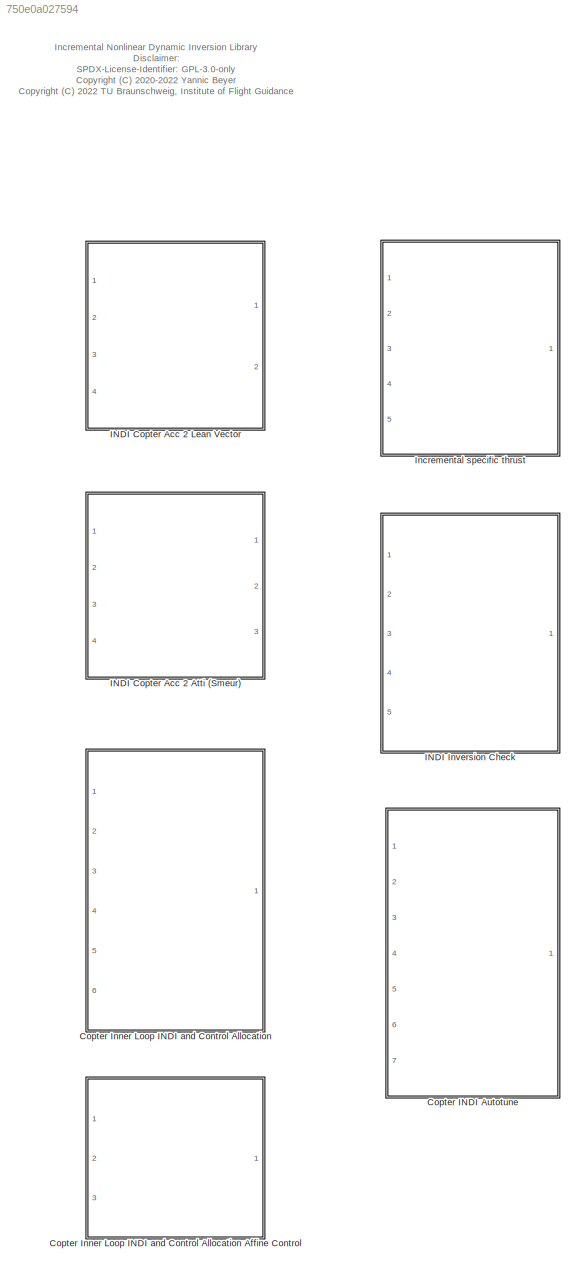
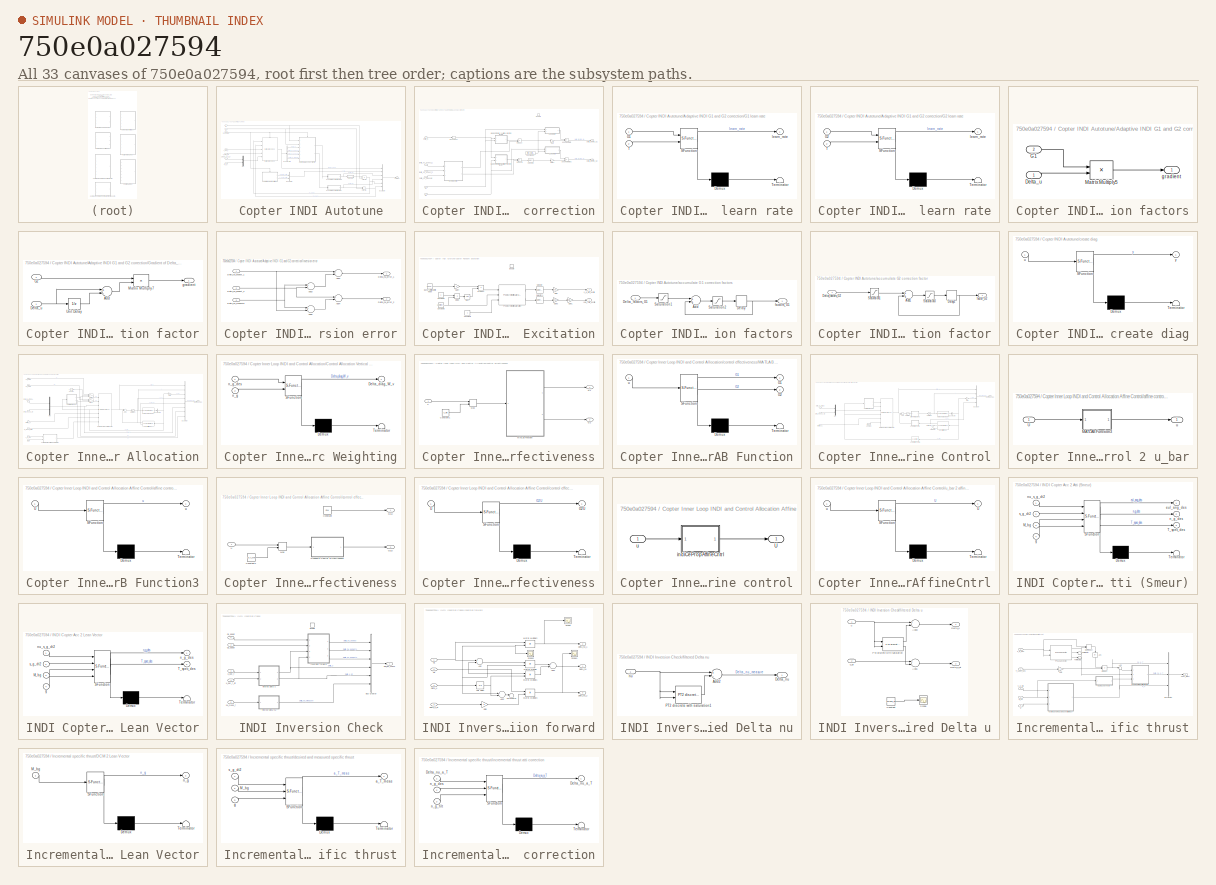
[diagram: thumbnail index - all 33 canvases of the model, root first then tree order]
MODEL slx_750e0a027594
KIND library
CONFIG AbsTol = auto
CONFIG EnableMultiTasking = off
CONFIG FixedStep = auto
CONFIG MaxStep = auto
CONFIG MinStep = auto
CONFIG RelTol = 1e-3
CONFIG SampleTimeConstraint = Unconstrained
CONFIG Solver = VariableStepAuto
CONFIG SolverName = VariableStepAuto
CONFIG StartTime = 0.0
CONFIG StopTime = 10.0
BLOCK [SubSystem] Copter INDI Autotune
  Ports = [7, 1]
  RequestExecContextInheritance = off
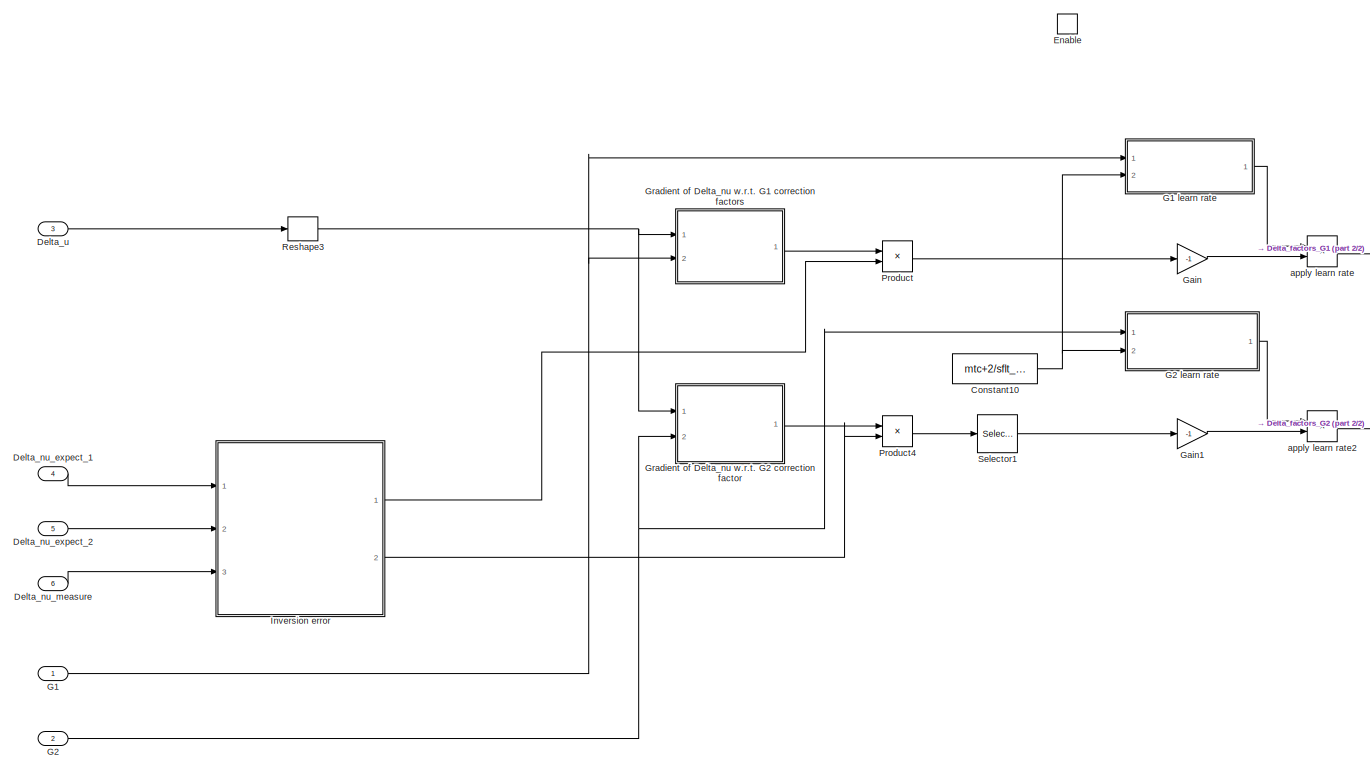
[diagram: Copter INDI Autotune/Adaptive INDI G1 and G2 correction - part 1/2, most of the canvas]
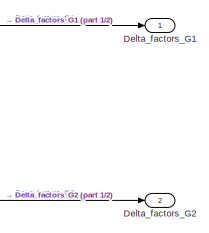
[diagram: Copter INDI Autotune/Adaptive INDI G1 and G2 correction - part 2/2, middle right region]
BLOCK [SubSystem] Copter INDI Autotune/Adaptive INDI G1 and G2 correction
  Ports = [6, 2, 1]
  RequestExecContextInheritance = off
BLOCK [Constant] Copter INDI Autotune/Adaptive INDI G1 and G2 correction/Constant10
  Value = mtc+2/sflt_omega
BLOCK [Outport] Copter INDI Autotune/Adaptive INDI G1 and G2 correction/Delta_factors_G1
  IconDisplay = Port number
  InitialOutput = 0
  OutputWhenDisabled = reset
BLOCK [Outport] Copter INDI Autotune/Adaptive INDI G1 and G2 correction/Delta_factors_G2
  IconDisplay = Port number
  InitialOutput = 0
  OutputWhenDisabled = reset
  Port = 2
BLOCK [Inport] Copter INDI Autotune/Adaptive INDI G1 and G2 correction/Delta_nu_expect_1
  IconDisplay = Port number
  Port = 4
BLOCK [Inport] Copter INDI Autotune/Adaptive INDI G1 and G2 correction/Delta_nu_expect_2
  IconDisplay = Port number
  Port = 5
BLOCK [Inport] Copter INDI Autotune/Adaptive INDI G1 and G2 correction/Delta_nu_measure
  IconDisplay = Port number
  Port = 6
BLOCK [Inport] Copter INDI Autotune/Adaptive INDI G1 and G2 correction/Delta_u
  IconDisplay = Port number
  Port = 3
BLOCK [EnablePort] Copter INDI Autotune/Adaptive INDI G1 and G2 correction/Enable
  Ports = []
BLOCK [Inport] Copter INDI Autotune/Adaptive INDI G1 and G2 correction/G1
  IconDisplay = Port number
BLOCK [SubSystem] Copter INDI Autotune/Adaptive INDI G1 and G2 correction/G1 learn rate
  ErrorFcn = Stateflow.Translate.translate
  PermitHierarchicalResolution = ExplicitOnly
  Ports = [2, 1]
  RequestExecContextInheritance = off
  SFBlockType = MATLAB Function
  TreatAsAtomicUnit = on
BLOCK [Demux] Copter INDI Autotune/Adaptive INDI G1 and G2 correction/G1 learn rate/ Demux 
  Outputs = 1
  Ports = [1, 1]
BLOCK [S-Function] Copter INDI Autotune/Adaptive INDI G1 and G2 correction/G1 learn rate/ SFunction 
  EnableBusSupport = off
  FunctionName = sf_sfun
  Parameters = rm_atc
  PortCounts = [2 2]
  Ports = [2, 2]
  SFcnIsStateOwnerBlock = off
  SFunctionDeploymentMode = off
  Tag = Stateflow S-Function indi_lib 9
BLOCK [Terminator] Copter INDI Autotune/Adaptive INDI G1 and G2 correction/G1 learn rate/ Terminator 
BLOCK [Inport] Copter INDI Autotune/Adaptive INDI G1 and G2 correction/G1 learn rate/G1
  IconDisplay = Port number
BLOCK [Inport] Copter INDI Autotune/Adaptive INDI G1 and G2 correction/G1 learn rate/T
  IconDisplay = Port number
  Port = 2
BLOCK [Outport] Copter INDI Autotune/Adaptive INDI G1 and G2 correction/G1 learn rate/learn_rate
  IconDisplay = Port number
BLOCK [Inport] Copter INDI Autotune/Adaptive INDI G1 and G2 correction/G2
  IconDisplay = Port number
  Port = 2
BLOCK [SubSystem] Copter INDI Autotune/Adaptive INDI G1 and G2 correction/G2 learn rate
  ErrorFcn = Stateflow.Translate.translate
  PermitHierarchicalResolution = ExplicitOnly
  Ports = [2, 1]
  RequestExecContextInheritance = off
  SFBlockType = MATLAB Function
  TreatAsAtomicUnit = on
BLOCK [Demux] Copter INDI Autotune/Adaptive INDI G1 and G2 correction/G2 learn rate/ Demux 
  Outputs = 1
  Ports = [1, 1]
BLOCK [S-Function] Copter INDI Autotune/Adaptive INDI G1 and G2 correction/G2 learn rate/ SFunction 
  EnableBusSupport = off
  FunctionName = sf_sfun
  Parameters = mtc,rm_atc,sflt_omega,ts
  PortCounts = [2 2]
  Ports = [2, 2]
  SFcnIsStateOwnerBlock = off
  SFunctionDeploymentMode = off
  Tag = Stateflow S-Function indi_lib 11
BLOCK [Terminator] Copter INDI Autotune/Adaptive INDI G1 and G2 correction/G2 learn rate/ Terminator 
BLOCK [Inport] Copter INDI Autotune/Adaptive INDI G1 and G2 correction/G2 learn rate/G2
  IconDisplay = Port number
BLOCK [Inport] Copter INDI Autotune/Adaptive INDI G1 and G2 correction/G2 learn rate/T
  IconDisplay = Port number
  Port = 2
BLOCK [Outport] Copter INDI Autotune/Adaptive INDI G1 and G2 correction/G2 learn rate/learn_rate
  IconDisplay = Port number
BLOCK [Gain] Copter INDI Autotune/Adaptive INDI G1 and G2 correction/Gain
  Gain = -1
  OutDataTypeStr = Inherit: Inherit via internal rule
  ParamDataTypeStr = Inherit: Inherit via internal rule
  SaturateOnIntegerOverflow = off
BLOCK [Gain] Copter INDI Autotune/Adaptive INDI G1 and G2 correction/Gain1
  Gain = -1
  OutDataTypeStr = Inherit: Inherit via internal rule
  ParamDataTypeStr = Inherit: Inherit via internal rule
  SaturateOnIntegerOverflow = off
BLOCK [SubSystem] Copter INDI Autotune/Adaptive INDI G1 and G2 correction/Gradient of Delta_nu w.r.t. G1 correction factors
  Ports = [2, 1]
  RequestExecContextInheritance = off
BLOCK [Inport] Copter INDI Autotune/Adaptive INDI G1 and G2 correction/Gradient of Delta_nu w.r.t. G1 correction factors/Delta_u
  IconDisplay = Port number
BLOCK [Inport] Copter INDI Autotune/Adaptive INDI G1 and G2 correction/Gradient of Delta_nu w.r.t. G1 correction factors/G1
  IconDisplay = Port number
  Port = 2
BLOCK [Product] Copter INDI Autotune/Adaptive INDI G1 and G2 correction/Gradient of Delta_nu w.r.t. G1 correction factors/Matrix Multiply5
  InputSameDT = off
  Multiplication = Matrix(*)
  OutDataTypeStr = Inherit: Inherit via internal rule
  Ports = [2, 1]
  RndMeth = Floor
  SaturateOnIntegerOverflow = off
BLOCK [Outport] Copter INDI Autotune/Adaptive INDI G1 and G2 correction/Gradient of Delta_nu w.r.t. G1 correction factors/gradient
  IconDisplay = Port number
BLOCK [SubSystem] Copter INDI Autotune/Adaptive INDI G1 and G2 correction/Gradient of Delta_nu w.r.t. G2 correction factor
  Ports = [2, 1]
  RequestExecContextInheritance = off
BLOCK [Sum] Copter INDI Autotune/Adaptive INDI G1 and G2 correction/Gradient of Delta_nu w.r.t. G2 correction factor/Add
  InputSameDT = off
  Inputs = +-
  OutDataTypeStr = Inherit: Inherit via internal rule
  Ports = [2, 1]
  SaturateOnIntegerOverflow = off
BLOCK [Inport] Copter INDI Autotune/Adaptive INDI G1 and G2 correction/Gradient of Delta_nu w.r.t. G2 correction factor/Delta_u
  IconDisplay = Port number
BLOCK [Inport] Copter INDI Autotune/Adaptive INDI G1 and G2 correction/Gradient of Delta_nu w.r.t. G2 correction factor/G2
  IconDisplay = Port number
  Port = 2
BLOCK [Product] Copter INDI Autotune/Adaptive INDI G1 and G2 correction/Gradient of Delta_nu w.r.t. G2 correction factor/Matrix Multiply7
  InputSameDT = off
  Multiplication = Matrix(*)
  OutDataTypeStr = Inherit: Inherit via internal rule
  Ports = [2, 1]
  RndMeth = Floor
  SaturateOnIntegerOverflow = off
BLOCK [UnitDelay] Copter INDI Autotune/Adaptive INDI G1 and G2 correction/Gradient of Delta_nu w.r.t. G2 correction factor/Unit Delay
  InputProcessing = Elements as channels (sample based)
  SampleTime = -1
BLOCK [Outport] Copter INDI Autotune/Adaptive INDI G1 and G2 correction/Gradient of Delta_nu w.r.t. G2 correction factor/gradient
  IconDisplay = Port number
BLOCK [SubSystem] Copter INDI Autotune/Adaptive INDI G1 and G2 correction/Inversion error
  Ports = [3, 2]
  RequestExecContextInheritance = off
BLOCK [Sum] Copter INDI Autotune/Adaptive INDI G1 and G2 correction/Inversion error/Add2
  InputSameDT = off
  Inputs = +-
  OutDataTypeStr = Inherit: Inherit via internal rule
  Ports = [2, 1]
  SaturateOnIntegerOverflow = off
BLOCK [Sum] Copter INDI Autotune/Adaptive INDI G1 and G2 correction/Inversion error/Add3
  InputSameDT = off
  Inputs = +-
  OutDataTypeStr = Inherit: Inherit via internal rule
  Ports = [2, 1]
  SaturateOnIntegerOverflow = off
BLOCK [Sum] Copter INDI Autotune/Adaptive INDI G1 and G2 correction/Inversion error/Add4
  InputSameDT = off
  Inputs = +-
  OutDataTypeStr = Inherit: Inherit via internal rule
  Ports = [2, 1]
  SaturateOnIntegerOverflow = off
BLOCK [Sum] Copter INDI Autotune/Adaptive INDI G1 and G2 correction/Inversion error/Add5
  InputSameDT = off
  Inputs = +-
  OutDataTypeStr = Inherit: Inherit via internal rule
  Ports = [2, 1]
  SaturateOnIntegerOverflow = off
BLOCK [Outport] Copter INDI Autotune/Adaptive INDI G1 and G2 correction/Inversion error/Delta_nu_error_1
  IconDisplay = Port number
BLOCK [Outport] Copter INDI Autotune/Adaptive INDI G1 and G2 correction/Inversion error/Delta_nu_error_2
  IconDisplay = Port number
  Port = 2
BLOCK [Inport] Copter INDI Autotune/Adaptive INDI G1 and G2 correction/Inversion error/Delta_nu_expect_1
  IconDisplay = Port number
BLOCK [Inport] Copter INDI Autotune/Adaptive INDI G1 and G2 correction/Inversion error/Delta_nu_expect_2
  IconDisplay = Port number
  Port = 2
BLOCK [Inport] Copter INDI Autotune/Adaptive INDI G1 and G2 correction/Inversion error/Delta_nu_measure
  IconDisplay = Port number
  Port = 3
BLOCK [Product] Copter INDI Autotune/Adaptive INDI G1 and G2 correction/Product
  InputSameDT = off
  OutDataTypeStr = Inherit: Inherit via internal rule
  Ports = [2, 1]
  RndMeth = Floor
  SaturateOnIntegerOverflow = off
BLOCK [Product] Copter INDI Autotune/Adaptive INDI G1 and G2 correction/Product4
  InputSameDT = off
  OutDataTypeStr = Inherit: Inherit via internal rule
  Ports = [2, 1]
  RndMeth = Floor
  SaturateOnIntegerOverflow = off
BLOCK [Reshape] Copter INDI Autotune/Adaptive INDI G1 and G2 correction/Reshape3
  OutputDimensionality = Column vector (2-D)
  Ports = [1, 1]
BLOCK [Selector] Copter INDI Autotune/Adaptive INDI G1 and G2 correction/Selector1
  IndexOptions = Index vector (dialog)
  Indices = 3
  InputPortWidth = 4
  OutputSizes = 1
  Ports = [1, 1]
BLOCK [Product] Copter INDI Autotune/Adaptive INDI G1 and G2 correction/apply learn rate
  InputSameDT = off
  OutDataTypeStr = Inherit: Inherit via internal rule
  Ports = [2, 1]
  RndMeth = Floor
  SaturateOnIntegerOverflow = off
BLOCK [Product] Copter INDI Autotune/Adaptive INDI G1 and G2 correction/apply learn rate2
  InputSameDT = off
  OutDataTypeStr = Inherit: Inherit via internal rule
  Ports = [2, 1]
  RndMeth = Floor
  SaturateOnIntegerOverflow = off
BLOCK [BusCreator] Copter INDI Autotune/Bus Creator
  DisplayOption = bar
  InheritFromInputs = on
  Inputs = 6
  Ports = [6, 1]
BLOCK [BusCreator] Copter INDI Autotune/Bus Creator1
  DisplayOption = bar
  InheritFromInputs = on
  Inputs = 2
  Ports = [2, 1]
BLOCK [BusSelector] Copter INDI Autotune/Bus Selector8
  OutputAsBus = off
  OutputSignals = Delta_u,Delta_nu_expect_1,Delta_nu_expect_2,Delta_nu_measure
  Ports = [1, 4]
BLOCK [SubSystem] Copter INDI Autotune/Copter Random Excitation
  Ports = [0, 2, 1]
  RequestExecContextInheritance = off
BLOCK [Reference] Copter INDI Autotune/Copter Random Excitation/Band-Limited White Noise  REF=simulink/Sources/Band-Limited
White Noise
  Ports = [0, 1]
  SourceBlock = simulink/Sources/Band-Limited\nWhite Noise
  SourceProductBaseCode = SL
  SourceProductName = Simulink
  SourceType = Band-Limited White Noise.
BLOCK [Constant] Copter INDI Autotune/Copter Random Excitation/Constant1
BLOCK [Constant] Copter INDI Autotune/Copter Random Excitation/Constant3
  Value = 1.5*2/(mtc+2/sflt_omega)
BLOCK [Constant] Copter INDI Autotune/Copter Random Excitation/Constant4
BLOCK [Product] Copter INDI Autotune/Copter Random Excitation/Divide
  InputSameDT = off
  Inputs = */
  OutDataTypeStr = Inherit: Inherit via internal rule
  Ports = [2, 1]
  RndMeth = Floor
  SaturateOnIntegerOverflow = off
BLOCK [EnablePort] Copter INDI Autotune/Copter Random Excitation/Enable
  Ports = []
  StatesWhenEnabling = reset
BLOCK [Gain] Copter INDI Autotune/Copter Random Excitation/Gain
  Gain = 3.5
  OutDataTypeStr = Inherit: Inherit via internal rule
  ParamDataTypeStr = Inherit: Inherit via internal rule
  SaturateOnIntegerOverflow = off
BLOCK [Gain] Copter INDI Autotune/Copter Random Excitation/Gain1
  Gain = lindi.atc.rm.yawratetc
  OutDataTypeStr = Inherit: Inherit via internal rule
  ParamDataTypeStr = Inherit: Inherit via internal rule
  SaturateOnIntegerOverflow = off
BLOCK [Gain] Copter INDI Autotune/Copter Random Excitation/Gain3
  Gain = 0.15
  OutDataTypeStr = Inherit: Inherit via internal rule
  ParamDataTypeStr = Inherit: Inherit via internal rule
  SaturateOnIntegerOverflow = off
BLOCK [Gain] Copter INDI Autotune/Copter Random Excitation/Gain4
  Gain = 3
  OutDataTypeStr = Inherit: Inherit via internal rule
  ParamDataTypeStr = Inherit: Inherit via internal rule
  SaturateOnIntegerOverflow = off
BLOCK [Reference] Copter INDI Autotune/Copter Random Excitation/PT2 discrete with saturation  REF=filters_lib/PT2 discrete with saturation  (lib defined in slx_a584fcc4ebc5)
  Ports = [3, 2]
  SourceBlock = filters_lib/PT2 discrete with saturation
  SourceProductName = LADAC
BLOCK [Product] Copter INDI Autotune/Copter Random Excitation/Product
  InputSameDT = off
  OutDataTypeStr = Inherit: Inherit via internal rule
  Ports = [2, 1]
  RndMeth = Floor
  SaturateOnIntegerOverflow = off
BLOCK [Selector] Copter INDI Autotune/Copter Random Excitation/Selector
  IndexOptions = Index vector (dialog)
  Indices = 1:3
  InputPortWidth = 4
  OutputSizes = 1
  Ports = [1, 1]
BLOCK [Selector] Copter INDI Autotune/Copter Random Excitation/Selector1
  IndexOptions = Index vector (dialog)
  Indices = 4
  InputPortWidth = 4
  OutputSizes = 1
  Ports = [1, 1]
BLOCK [Sqrt] Copter INDI Autotune/Copter Random Excitation/Sqrt
BLOCK [Outport] Copter INDI Autotune/Copter Random Excitation/s_g_dt2_excite
  IconDisplay = Port number
  InitialOutput = 0
  OutputWhenDisabled = reset
  Port = 2
BLOCK [Outport] Copter INDI Autotune/Copter Random Excitation/yaw_rate_excite
  IconDisplay = Port number
  InitialOutput = 0
  OutputWhenDisabled = reset
BLOCK [Inport] Copter INDI Autotune/G1
  IconDisplay = Port number
BLOCK [Inport] Copter INDI Autotune/G2
  IconDisplay = Port number
  Port = 2
BLOCK [Reference] Copter INDI Autotune/INDI Inversion Check  REF=$bdroot/INDI Inversion Check
  Ports = [5, 1, 1]
  SourceBlock = $bdroot/INDI Inversion Check
BLOCK [Mux] Copter INDI Autotune/Mux
  DisplayOption = bar
  Inputs = 2
  Ports = [2, 1]
BLOCK [Inport] Copter INDI Autotune/Omega_Kb_dt_f
  IconDisplay = Port number
  Port = 5
BLOCK [Inport] Copter INDI Autotune/a_T_f
  IconDisplay = Port number
  Port = 6
BLOCK [SubSystem] Copter INDI Autotune/accumulate G1 correction factors
  Ports = [1, 1]
  RequestExecContextInheritance = off
BLOCK [Sum] Copter INDI Autotune/accumulate G1 correction factors/Add
  InputSameDT = off
  OutDataTypeStr = Inherit: Inherit via internal rule
  Ports = [2, 1]
  SaturateOnIntegerOverflow = off
BLOCK [Delay] Copter INDI Autotune/accumulate G1 correction factors/Delay
  DelayLength = 1
  InitialCondition = 1
  InputPortMap = u0
  Ports = [1, 1]
BLOCK [Inport] Copter INDI Autotune/accumulate G1 correction factors/Delta_factors_G1
  IconDisplay = Port number
BLOCK [Saturate] Copter INDI Autotune/accumulate G1 correction factors/Saturation1
  InputPortMap = u0
  LowerLimit = -0.1
  Ports = [1, 1]
  UpperLimit = 0.1
BLOCK [Saturate] Copter INDI Autotune/accumulate G1 correction factors/Saturation2
  InputPortMap = u0
  LowerLimit = 0.25
  Ports = [1, 1]
  UpperLimit = 4
BLOCK [Outport] Copter INDI Autotune/accumulate G1 correction factors/factors_G1
  IconDisplay = Port number
BLOCK [SubSystem] Copter INDI Autotune/accumulate G2 correction factor
  Ports = [1, 1]
  RequestExecContextInheritance = off
BLOCK [Sum] Copter INDI Autotune/accumulate G2 correction factor/Add1
  InputSameDT = off
  OutDataTypeStr = Inherit: Inherit via internal rule
  Ports = [2, 1]
  SaturateOnIntegerOverflow = off
BLOCK [Delay] Copter INDI Autotune/accumulate G2 correction factor/Delay1
  DelayLength = 1
  InitialCondition = 1
  InputPortMap = u0
  Ports = [1, 1]
BLOCK [Inport] Copter INDI Autotune/accumulate G2 correction factor/Delta_factors_G2
  IconDisplay = Port number
BLOCK [Saturate] Copter INDI Autotune/accumulate G2 correction factor/Saturation1
  InputPortMap = u0
  LowerLimit = -0.1
  Ports = [1, 1]
  UpperLimit = 0.1
BLOCK [Saturate] Copter INDI Autotune/accumulate G2 correction factor/Saturation3
  InputPortMap = u0
  LowerLimit = 0.25
  Ports = [1, 1]
  UpperLimit = 4
BLOCK [Outport] Copter INDI Autotune/accumulate G2 correction factor/factor_G2
  IconDisplay = Port number
  PortDimensions = 1
BLOCK [Outport] Copter INDI Autotune/autotune
  IconDisplay = Port number
BLOCK [Product] Copter INDI Autotune/correct G1
  InputSameDT = off
  Multiplication = Matrix(*)
  OutDataTypeStr = Inherit: Inherit via internal rule
  Ports = [2, 1]
  RndMeth = Floor
  SaturateOnIntegerOverflow = off
BLOCK [Product] Copter INDI Autotune/correct G2
  InputSameDT = off
  OutDataTypeStr = Inherit: Inherit via internal rule
  Ports = [2, 1]
  RndMeth = Floor
  SaturateOnIntegerOverflow = off
BLOCK [SubSystem] Copter INDI Autotune/create diag
  ErrorFcn = Stateflow.Translate.translate
  PermitHierarchicalResolution = ExplicitOnly
  Ports = [1, 1]
  RequestExecContextInheritance = off
  SFBlockType = MATLAB Function
  TreatAsAtomicUnit = on
BLOCK [Demux] Copter INDI Autotune/create diag/ Demux 
  Outputs = 1
  Ports = [1, 1]
BLOCK [S-Function] Copter INDI Autotune/create diag/ SFunction 
  EnableBusSupport = off
  FunctionName = sf_sfun
  PortCounts = [1 2]
  Ports = [1, 2]
  SFcnIsStateOwnerBlock = off
  SFunctionDeploymentMode = off
  Tag = Stateflow S-Function indi_lib 14
BLOCK [Terminator] Copter INDI Autotune/create diag/ Terminator 
BLOCK [Inport] Copter INDI Autotune/create diag/u
  IconDisplay = Port number
BLOCK [Outport] Copter INDI Autotune/create diag/y
  IconDisplay = Port number
BLOCK [Inport] Copter INDI Autotune/is_enabled
  IconDisplay = Port number
  Port = 7
BLOCK [Inport] Copter INDI Autotune/u_bar_f
  IconDisplay = Port number
  Port = 3
BLOCK [Inport] Copter INDI Autotune/u_bar_f_dt
  IconDisplay = Port number
  Port = 4
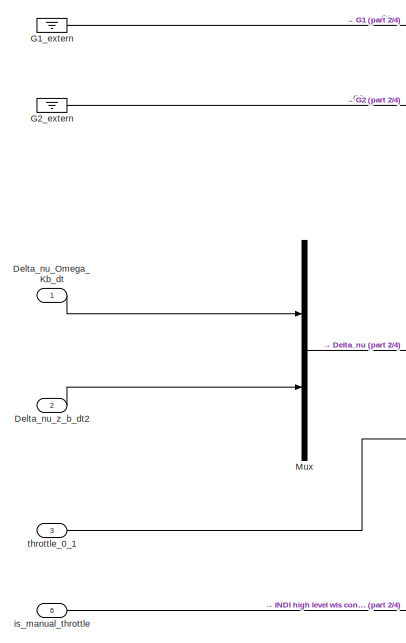
[diagram: Copter Inner Loop INDI and Control Allocation - part 1/4, left side, full height]
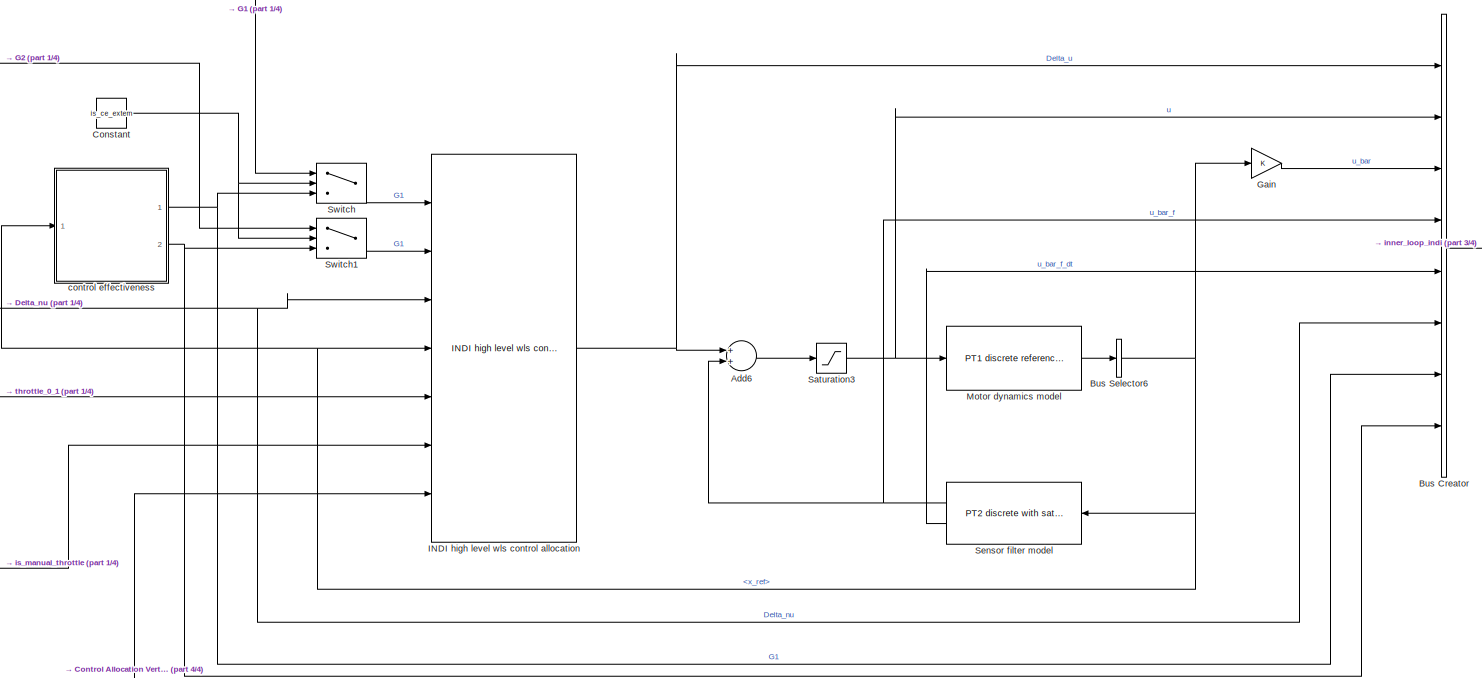
[diagram: Copter Inner Loop INDI and Control Allocation - part 2/4, center side, full height]
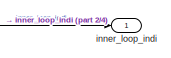
[diagram: Copter Inner Loop INDI and Control Allocation - part 3/4, middle right region]
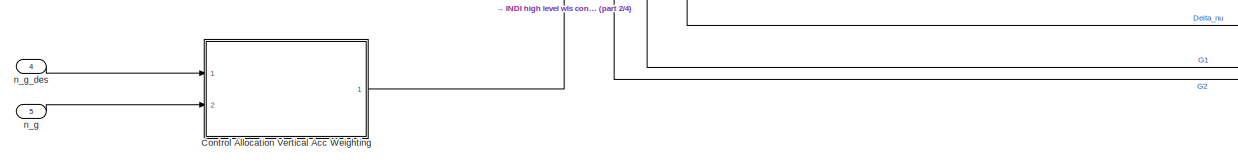
[diagram: Copter Inner Loop INDI and Control Allocation - part 4/4, bottom left region]
BLOCK [SubSystem] Copter Inner Loop INDI and Control Allocation
  Ports = [6, 1]
  RequestExecContextInheritance = off
BLOCK [SubSystem] Copter Inner Loop INDI and Control Allocation Affine Control
  Ports = [3, 1]
  RequestExecContextInheritance = off
BLOCK [Sum] Copter Inner Loop INDI and Control Allocation Affine Control/Add6
  InputSameDT = off
  OutDataTypeStr = Inherit: Inherit via internal rule
  Ports = [2, 1]
  SaturateOnIntegerOverflow = off
BLOCK [BusCreator] Copter Inner Loop INDI and Control Allocation Affine Control/Bus Creator
  DisplayOption = bar
  InheritFromInputs = on
  Inputs = 4
  Ports = [4, 1]
BLOCK [BusSelector] Copter Inner Loop INDI and Control Allocation Affine Control/Bus Selector6
  OutputAsBus = off
  OutputSignals = x_ref
  Ports = [1, 1]
BLOCK [Constant] Copter Inner Loop INDI and Control Allocation Affine Control/Constant2
  Value = false(size(ca.u_d))
BLOCK [Inport] Copter Inner Loop INDI and Control Allocation Affine Control/Delta_nu_atti_dt2
  IconDisplay = Port number
BLOCK [Inport] Copter Inner Loop INDI and Control Allocation Affine Control/Delta_nu_z_b_dt2
  IconDisplay = Port number
  Port = 2
BLOCK [Gain] Copter Inner Loop INDI and Control Allocation Affine Control/Gain
  OutDataTypeStr = Inherit: Inherit via internal rule
  ParamDataTypeStr = Inherit: Inherit via internal rule
  SaturateOnIntegerOverflow = off
BLOCK [Reference] Copter Inner Loop INDI and Control Allocation Affine Control/INDI high level wls control allocation  REF=ca_lib/INDI high level wls control allocation  (lib defined in slx_0f34462aa2fc)
for copters
  Ports = [6, 1]
  SourceBlock = ca_lib/INDI high level wls control allocation\nfor copters
  SourceProductName = LADAC
BLOCK [Reference] Copter Inner Loop INDI and Control Allocation Affine Control/Motor dynamics model  REF=ndi_lib/PT1 discrete reference model  (lib defined in slx_72fedfba3911)
  Ports = [1, 1]
  SourceBlock = ndi_lib/PT1 discrete reference model
  SourceProductName = LADAC
BLOCK [Mux] Copter Inner Loop INDI and Control Allocation Affine Control/Mux
  DisplayOption = bar
  Inputs = 2
  Ports = [2, 1]
BLOCK [Saturate] Copter Inner Loop INDI and Control Allocation Affine Control/Saturation1
  InputPortMap = u0
  LowerLimit = indiCePropAffineCntrl( cep, ca.u_min )
  Ports = [1, 1]
  UpperLimit = indiCePropAffineCntrl( cep, ca.u_max )
BLOCK [Saturate] Copter Inner Loop INDI and Control Allocation Affine Control/Saturation3
  InputPortMap = u0
  LowerLimit = u_min
  Ports = [1, 1]
  UpperLimit = u_max
BLOCK [Reference] Copter Inner Loop INDI and Control Allocation Affine Control/Sensor filter model  REF=filters_lib/PT2 discrete with saturation  (lib defined in slx_a584fcc4ebc5)
  Ports = [1, 3]
  SourceBlock = filters_lib/PT2 discrete with saturation
  SourceProductName = LADAC
BLOCK [Terminator] Copter Inner Loop INDI and Control Allocation Affine Control/Terminator1
BLOCK [Terminator] Copter Inner Loop INDI and Control Allocation Affine Control/Terminator2
BLOCK [SubSystem] Copter Inner Loop INDI and Control Allocation Affine Control/affine control 2 u_bar
  Ports = [1, 1]
  RequestExecContextInheritance = off
BLOCK [SubSystem] Copter Inner Loop INDI and Control Allocation Affine Control/affine control 2 u_bar/MATLAB Function3
  ErrorFcn = Stateflow.Translate.translate
  PermitHierarchicalResolution = ExplicitOnly
  Ports = [1, 1]
  RequestExecContextInheritance = off
  SFBlockType = MATLAB Function
  TreatAsAtomicUnit = on
BLOCK [Demux] Copter Inner Loop INDI and Control Allocation Affine Control/affine control 2 u_bar/MATLAB Function3/ Demux 
  Outputs = 1
  Ports = [1, 1]
BLOCK [S-Function] Copter Inner Loop INDI and Control Allocation Affine Control/affine control 2 u_bar/MATLAB Function3/ SFunction 
  EnableBusSupport = on
  FunctionName = sf_sfun
  Parameters = cep
  PortCounts = [1 2]
  Ports = [1, 2]
  SFcnIsStateOwnerBlock = off
  SFunctionDeploymentMode = off
  Tag = Stateflow S-Function indi_lib 12
BLOCK [Terminator] Copter Inner Loop INDI and Control Allocation Affine Control/affine control 2 u_bar/MATLAB Function3/ Terminator 
BLOCK [Inport] Copter Inner Loop INDI and Control Allocation Affine Control/affine control 2 u_bar/MATLAB Function3/U
  IconDisplay = Port number
BLOCK [Outport] Copter Inner Loop INDI and Control Allocation Affine Control/affine control 2 u_bar/MATLAB Function3/u
  IconDisplay = Port number
BLOCK [Inport] Copter Inner Loop INDI and Control Allocation Affine Control/affine control 2 u_bar/U
  IconDisplay = Port number
BLOCK [Outport] Copter Inner Loop INDI and Control Allocation Affine Control/affine control 2 u_bar/u
  IconDisplay = Port number
BLOCK [SubSystem] Copter Inner Loop INDI and Control Allocation Affine Control/control effectiveness
  Ports = [1, 2]
  RequestExecContextInheritance = off
BLOCK [Constant] Copter Inner Loop INDI and Control Allocation Affine Control/control effectiveness/Constant
  Value = G1U
BLOCK [Constant] Copter Inner Loop INDI and Control Allocation Affine Control/control effectiveness/Constant1
  Value = ca.u_min
BLOCK [Outport] Copter Inner Loop INDI and Control Allocation Affine Control/control effectiveness/G1U
  IconDisplay = Port number
BLOCK [Outport] Copter Inner Loop INDI and Control Allocation Affine Control/control effectiveness/G2U
  IconDisplay = Port number
  Port = 2
BLOCK [MinMax] Copter Inner Loop INDI and Control Allocation Affine Control/control effectiveness/Max
  Function = max
  InputSameDT = off
  Inputs = 2
  OutDataTypeStr = Inherit: Inherit via back propagation
  Ports = [2, 1]
  SaturateOnIntegerOverflow = off
BLOCK [SubSystem] Copter Inner Loop INDI and Control Allocation Affine Control/control effectiveness/Schedule Control Effectiveness
  ErrorFcn = Stateflow.Translate.translate
  PermitHierarchicalResolution = ExplicitOnly
  Ports = [1, 1]
  RequestExecContextInheritance = off
  SFBlockType = MATLAB Function
  TreatAsAtomicUnit = on
BLOCK [Demux] Copter Inner Loop INDI and Control Allocation Affine Control/control effectiveness/Schedule Control Effectiveness/ Demux 
  Outputs = 1
  Ports = [1, 1]
BLOCK [S-Function] Copter Inner Loop INDI and Control Allocation Affine Control/control effectiveness/Schedule Control Effectiveness/ SFunction 
  EnableBusSupport = off
  FunctionName = sf_sfun
  Parameters = G20,omega_max
  PortCounts = [1 2]
  Ports = [1, 2]
  SFcnIsStateOwnerBlock = off
  SFunctionDeploymentMode = off
  Tag = Stateflow S-Function indi_lib 3
BLOCK [Terminator] Copter Inner Loop INDI and Control Allocation Affine Control/control effectiveness/Schedule Control Effectiveness/ Terminator 
BLOCK [Outport] Copter Inner Loop INDI and Control Allocation Affine Control/control effectiveness/Schedule Control Effectiveness/G2U
  IconDisplay = Port number
BLOCK [Inport] Copter Inner Loop INDI and Control Allocation Affine Control/control effectiveness/Schedule Control Effectiveness/U
  IconDisplay = Port number
BLOCK [Inport] Copter Inner Loop INDI and Control Allocation Affine Control/control effectiveness/U
  IconDisplay = Port number
BLOCK [Outport] Copter Inner Loop INDI and Control Allocation Affine Control/inner_loop_indi
  IconDisplay = Port number
BLOCK [Inport] Copter Inner Loop INDI and Control Allocation Affine Control/throttle_0_1
  IconDisplay = Port number
  Port = 3
BLOCK [SubSystem] Copter Inner Loop INDI and Control Allocation Affine Control/u_bar 2 affine control
  Ports = [1, 1]
  RequestExecContextInheritance = off
BLOCK [Outport] Copter Inner Loop INDI and Control Allocation Affine Control/u_bar 2 affine control/U
  IconDisplay = Port number
BLOCK [SubSystem] Copter Inner Loop INDI and Control Allocation Affine Control/u_bar 2 affine control/indiCePropAffineCntrl
  ErrorFcn = Stateflow.Translate.translate
  PermitHierarchicalResolution = ExplicitOnly
  Ports = [1, 1]
  RequestExecContextInheritance = off
  SFBlockType = MATLAB Function
  TreatAsAtomicUnit = on
BLOCK [Demux] Copter Inner Loop INDI and Control Allocation Affine Control/u_bar 2 affine control/indiCePropAffineCntrl/ Demux 
  Outputs = 1
  Ports = [1, 1]
BLOCK [S-Function] Copter Inner Loop INDI and Control Allocation Affine Control/u_bar 2 affine control/indiCePropAffineCntrl/ SFunction 
  EnableBusSupport = on
  FunctionName = sf_sfun
  Parameters = cep
  PortCounts = [1 2]
  Ports = [1, 2]
  SFcnIsStateOwnerBlock = off
  SFunctionDeploymentMode = off
  Tag = Stateflow S-Function indi_lib 10
BLOCK [Terminator] Copter Inner Loop INDI and Control Allocation Affine Control/u_bar 2 affine control/indiCePropAffineCntrl/ Terminator 
BLOCK [Outport] Copter Inner Loop INDI and Control Allocation Affine Control/u_bar 2 affine control/indiCePropAffineCntrl/U
  IconDisplay = Port number
BLOCK [Inport] Copter Inner Loop INDI and Control Allocation Affine Control/u_bar 2 affine control/indiCePropAffineCntrl/u
  IconDisplay = Port number
BLOCK [Inport] Copter Inner Loop INDI and Control Allocation Affine Control/u_bar 2 affine control/u
  IconDisplay = Port number
BLOCK [Reference] Copter Inner Loop INDI and Control Allocation Affine Control/u_bar 2 affine control1  REF=$bdroot/Copter Inner Loop INDI and Control Allocation
Affine Control/u_bar 2 affine control
  Ports = [1, 1]
  SourceBlock = $bdroot/Copter Inner Loop INDI and Control Allocation\nAffine Control/u_bar 2 affine control
BLOCK [Sum] Copter Inner Loop INDI and Control Allocation/Add6
  InputSameDT = off
  OutDataTypeStr = Inherit: Inherit via internal rule
  Ports = [2, 1]
  SaturateOnIntegerOverflow = off
BLOCK [BusCreator] Copter Inner Loop INDI and Control Allocation/Bus Creator
  DisplayOption = bar
  InheritFromInputs = on
  Inputs = 8
  Ports = [8, 1]
BLOCK [BusSelector] Copter Inner Loop INDI and Control Allocation/Bus Selector6
  OutputAsBus = off
  OutputSignals = x_ref
  Ports = [1, 1]
BLOCK [Constant] Copter Inner Loop INDI and Control Allocation/Constant
  Value = is_ce_extern
BLOCK [SubSystem] Copter Inner Loop INDI and Control Allocation/Control Allocation Vertical Acc Weighting
  ErrorFcn = Stateflow.Translate.translate
  PermitHierarchicalResolution = ExplicitOnly
  Ports = [2, 1]
  RequestExecContextInheritance = off
  SFBlockType = MATLAB Function
  TreatAsAtomicUnit = on
BLOCK [Demux] Copter Inner Loop INDI and Control Allocation/Control Allocation Vertical Acc Weighting/ Demux 
  Outputs = 1
  Ports = [1, 1]
BLOCK [S-Function] Copter Inner Loop INDI and Control Allocation/Control Allocation Vertical Acc Weighting/ SFunction 
  EnableBusSupport = off
  FunctionName = sf_sfun
  Parameters = ca
  PortCounts = [2 2]
  Ports = [2, 2]
  SFcnIsStateOwnerBlock = off
  SFunctionDeploymentMode = off
  Tag = Stateflow S-Function indi_lib 7
BLOCK [Terminator] Copter Inner Loop INDI and Control Allocation/Control Allocation Vertical Acc Weighting/ Terminator 
BLOCK [Outport] Copter Inner Loop INDI and Control Allocation/Control Allocation Vertical Acc Weighting/Delta_diag_W_v
  IconDisplay = Port number
BLOCK [Inport] Copter Inner Loop INDI and Control Allocation/Control Allocation Vertical Acc Weighting/n_g
  IconDisplay = Port number
  Port = 2
BLOCK [Inport] Copter Inner Loop INDI and Control Allocation/Control Allocation Vertical Acc Weighting/n_g_des
  IconDisplay = Port number
BLOCK [Inport] Copter Inner Loop INDI and Control Allocation/Delta_nu_Omega_Kb_dt
  IconDisplay = Port number
BLOCK [Inport] Copter Inner Loop INDI and Control Allocation/Delta_nu_z_b_dt2
  IconDisplay = Port number
  Port = 2
BLOCK [Ground] Copter Inner Loop INDI and Control Allocation/G1_extern
BLOCK [Ground] Copter Inner Loop INDI and Control Allocation/G2_extern
BLOCK [Gain] Copter Inner Loop INDI and Control Allocation/Gain
  OutDataTypeStr = Inherit: Inherit via internal rule
  ParamDataTypeStr = Inherit: Inherit via internal rule
  SaturateOnIntegerOverflow = off
BLOCK [Reference] Copter Inner Loop INDI and Control Allocation/INDI high level wls control allocation  REF=ca_lib/INDI high level wls control allocation  (lib defined in slx_0f34462aa2fc)
for copters
  Ports = [7, 1]
  SourceBlock = ca_lib/INDI high level wls control allocation\nfor copters
  SourceProductName = LADAC
BLOCK [Reference] Copter Inner Loop INDI and Control Allocation/Motor dynamics model  REF=ndi_lib/PT1 discrete reference model  (lib defined in slx_72fedfba3911)
  Ports = [1, 1]
  SourceBlock = ndi_lib/PT1 discrete reference model
  SourceProductName = LADAC
BLOCK [Mux] Copter Inner Loop INDI and Control Allocation/Mux
  DisplayOption = bar
  Inputs = 2
  Ports = [2, 1]
BLOCK [Saturate] Copter Inner Loop INDI and Control Allocation/Saturation3
  InputPortMap = u0
  LowerLimit = ca.u_min
  Ports = [1, 1]
  UpperLimit = ca.u_max
BLOCK [Reference] Copter Inner Loop INDI and Control Allocation/Sensor filter model  REF=filters_lib/PT2 discrete with saturation  (lib defined in slx_a584fcc4ebc5)
  Ports = [1, 2]
  SourceBlock = filters_lib/PT2 discrete with saturation
  SourceProductName = LADAC
  SourceType = PT2 discrete with saturation
BLOCK [Switch] Copter Inner Loop INDI and Control Allocation/Switch
  Criteria = u2 > Threshold
  InputSameDT = off
  SaturateOnIntegerOverflow = off
BLOCK [Switch] Copter Inner Loop INDI and Control Allocation/Switch1
  Criteria = u2 > Threshold
  InputSameDT = off
  SaturateOnIntegerOverflow = off
BLOCK [SubSystem] Copter Inner Loop INDI and Control Allocation/control effectiveness
  Ports = [1, 2]
  RequestExecContextInheritance = off
BLOCK [Constant] Copter Inner Loop INDI and Control Allocation/control effectiveness/Constant1
  Value = u_min
BLOCK [Outport] Copter Inner Loop INDI and Control Allocation/control effectiveness/G1
  IconDisplay = Port number
BLOCK [Outport] Copter Inner Loop INDI and Control Allocation/control effectiveness/G2
  IconDisplay = Port number
  Port = 2
BLOCK [SubSystem] Copter Inner Loop INDI and Control Allocation/control effectiveness/MATLAB Function
  ErrorFcn = Stateflow.Translate.translate
  PermitHierarchicalResolution = ExplicitOnly
  Ports = [1, 2]
  RequestExecContextInheritance = off
  SFBlockType = MATLAB Function
  TreatAsAtomicUnit = on
BLOCK [Demux] Copter Inner Loop INDI and Control Allocation/control effectiveness/MATLAB Function/ Demux 
  Outputs = 1
  Ports = [1, 1]
BLOCK [S-Function] Copter Inner Loop INDI and Control Allocation/control effectiveness/MATLAB Function/ SFunction 
  EnableBusSupport = off
  FunctionName = sf_sfun
  Parameters = G10,G20,cep
  PortCounts = [1 3]
  Ports = [1, 3]
  SFcnIsStateOwnerBlock = off
  SFunctionDeploymentMode = off
  Tag = Stateflow S-Function indi_lib 8
BLOCK [Terminator] Copter Inner Loop INDI and Control Allocation/control effectiveness/MATLAB Function/ Terminator 
BLOCK [Outport] Copter Inner Loop INDI and Control Allocation/control effectiveness/MATLAB Function/G1
  IconDisplay = Port number
BLOCK [Outport] Copter Inner Loop INDI and Control Allocation/control effectiveness/MATLAB Function/G2
  IconDisplay = Port number
  Port = 2
BLOCK [Inport] Copter Inner Loop INDI and Control Allocation/control effectiveness/MATLAB Function/u
  IconDisplay = Port number
BLOCK [MinMax] Copter Inner Loop INDI and Control Allocation/control effectiveness/Max
  Function = max
  InputSameDT = off
  Inputs = 2
  OutDataTypeStr = Inherit: Inherit via back propagation
  Ports = [2, 1]
  SaturateOnIntegerOverflow = off
BLOCK [Inport] Copter Inner Loop INDI and Control Allocation/control effectiveness/u
  IconDisplay = Port number
BLOCK [Outport] Copter Inner Loop INDI and Control Allocation/inner_loop_indi
  IconDisplay = Port number
BLOCK [Inport] Copter Inner Loop INDI and Control Allocation/is_manual_throttle
  IconDisplay = Port number
  Port = 6
BLOCK [Inport] Copter Inner Loop INDI and Control Allocation/n_g
  IconDisplay = Port number
  Port = 5
BLOCK [Inport] Copter Inner Loop INDI and Control Allocation/n_g_des
  IconDisplay = Port number
  Port = 4
BLOCK [Inport] Copter Inner Loop INDI and Control Allocation/throttle_0_1
  IconDisplay = Port number
  Port = 3
BLOCK [SubSystem] INDI Copter Acc 2 Atti (Smeur)
  ErrorFcn = Stateflow.Translate.translate
  PermitHierarchicalResolution = ExplicitOnly
  Ports = [4, 3]
  RequestExecContextInheritance = off
  SFBlockType = MATLAB Function
  TreatAsAtomicUnit = on
BLOCK [Demux] INDI Copter Acc 2 Atti (Smeur)/ Demux 
  Outputs = 1
  Ports = [1, 1]
BLOCK [S-Function] INDI Copter Acc 2 Atti (Smeur)/ SFunction 
  EnableBusSupport = on
  FunctionName = sf_sfun
  PortCounts = [4 4]
  Ports = [4, 4]
  SFcnIsStateOwnerBlock = off
  SFunctionDeploymentMode = off
  Tag = Stateflow S-Function indi_lib 4
BLOCK [Terminator] INDI Copter Acc 2 Atti (Smeur)/ Terminator 
BLOCK [Inport] INDI Copter Acc 2 Atti (Smeur)/M_bg
  IconDisplay = Port number
  Port = 3
BLOCK [Outport] INDI Copter Acc 2 Atti (Smeur)/T_spec_des
  IconDisplay = Port number
  Port = 3
BLOCK [Outport] INDI Copter Acc 2 Atti (Smeur)/eul_ang_des
  IconDisplay = Port number
BLOCK [Inport] INDI Copter Acc 2 Atti (Smeur)/g
  IconDisplay = Port number
  Port = 4
BLOCK [Outport] INDI Copter Acc 2 Atti (Smeur)/n_g_des
  IconDisplay = Port number
  Port = 2
BLOCK [Inport] INDI Copter Acc 2 Atti (Smeur)/nu_s_g_dt2
  IconDisplay = Port number
BLOCK [Inport] INDI Copter Acc 2 Atti (Smeur)/s_g_dt2
  IconDisplay = Port number
  Port = 2
BLOCK [SubSystem] INDI Copter Acc 2 Lean Vector
  ErrorFcn = Stateflow.Translate.translate
  PermitHierarchicalResolution = ExplicitOnly
  Ports = [4, 2]
  RequestExecContextInheritance = off
  SFBlockType = MATLAB Function
  TreatAsAtomicUnit = on
BLOCK [Demux] INDI Copter Acc 2 Lean Vector/ Demux 
  Outputs = 1
  Ports = [1, 1]
BLOCK [S-Function] INDI Copter Acc 2 Lean Vector/ SFunction 
  EnableBusSupport = off
  FunctionName = sf_sfun
  PortCounts = [4 3]
  Ports = [4, 3]
  SFcnIsStateOwnerBlock = off
  SFunctionDeploymentMode = off
  Tag = Stateflow S-Function indi_lib 2
BLOCK [Terminator] INDI Copter Acc 2 Lean Vector/ Terminator 
BLOCK [Inport] INDI Copter Acc 2 Lean Vector/M_bg
  IconDisplay = Port number
  Port = 3
BLOCK [Outport] INDI Copter Acc 2 Lean Vector/T_spec_des
  IconDisplay = Port number
  Port = 2
BLOCK [Inport] INDI Copter Acc 2 Lean Vector/g
  IconDisplay = Port number
  Port = 4
BLOCK [Outport] INDI Copter Acc 2 Lean Vector/n_g_des
  IconDisplay = Port number
BLOCK [Inport] INDI Copter Acc 2 Lean Vector/nu_s_g_dt2
  IconDisplay = Port number
BLOCK [Inport] INDI Copter Acc 2 Lean Vector/s_g_dt2
  IconDisplay = Port number
  Port = 2
BLOCK [SubSystem] INDI Inversion Check
  Ports = [5, 1, 1]
  RequestExecContextInheritance = off
BLOCK [BusCreator] INDI Inversion Check/Bus Creator
  DisplayOption = bar
  InheritFromInputs = on
  Inputs = 6
  Ports = [6, 1]
BLOCK [EnablePort] INDI Inversion Check/Enable
  Ports = []
BLOCK [Inport] INDI Inversion Check/G1_adapt
  IconDisplay = Port number
BLOCK [Inport] INDI Inversion Check/G2_adapt
  IconDisplay = Port number
  Port = 2
BLOCK [SubSystem] INDI Inversion Check/Inversion forward
  Ports = [4, 3]
  RequestExecContextInheritance = off
BLOCK [Sum] INDI Inversion Check/Inversion forward/Add
  InputSameDT = off
  OutDataTypeStr = Inherit: Inherit via internal rule
  Ports = [2, 1]
  SaturateOnIntegerOverflow = off
BLOCK [Sum] INDI Inversion Check/Inversion forward/Add1
  InputSameDT = off
  Inputs = +-
  OutDataTypeStr = Inherit: Inherit via internal rule
  Ports = [2, 1]
  SaturateOnIntegerOverflow = off
BLOCK [Sum] INDI Inversion Check/Inversion forward/Add2
  InputSameDT = off
  Inputs = +-
  OutDataTypeStr = Inherit: Inherit via internal rule
  Ports = [2, 1]
  SaturateOnIntegerOverflow = off
BLOCK [Outport] INDI Inversion Check/Inversion forward/Delta_nu
  IconDisplay = Port number
BLOCK [Outport] INDI Inversion Check/Inversion forward/Delta_nu_1
  IconDisplay = Port number
  Port = 2
BLOCK [Outport] INDI Inversion Check/Inversion forward/Delta_nu_2
  IconDisplay = Port number
  Port = 3
BLOCK [Inport] INDI Inversion Check/Inversion forward/Delta_u
  IconDisplay = Port number
  Port = 3
BLOCK [Inport] INDI Inversion Check/Inversion forward/Delta_u_dt
  IconDisplay = Port number
  Port = 4
BLOCK [Inport] INDI Inversion Check/Inversion forward/G1
  IconDisplay = Port number
BLOCK [Inport] INDI Inversion Check/Inversion forward/G2
  IconDisplay = Port number
  Port = 2
BLOCK [Gain] INDI Inversion Check/Inversion forward/Gain
  Gain = ts
  OutDataTypeStr = Inherit: Inherit via internal rule
  ParamDataTypeStr = Inherit: Inherit via internal rule
  SaturateOnIntegerOverflow = off
BLOCK [Product] INDI Inversion Check/Inversion forward/Matrix Multiply
  InputSameDT = off
  Multiplication = Matrix(*)
  OutDataTypeStr = Inherit: Inherit via internal rule
  Ports = [2, 1]
  RndMeth = Floor
  SaturateOnIntegerOverflow = off
BLOCK [Product] INDI Inversion Check/Inversion forward/Matrix Multiply1
  InputSameDT = off
  Multiplication = Matrix(*)
  OutDataTypeStr = Inherit: Inherit via internal rule
  Ports = [2, 1]
  RndMeth = Floor
  SaturateOnIntegerOverflow = off
BLOCK [Product] INDI Inversion Check/Inversion forward/Matrix Multiply2
  InputSameDT = off
  Multiplication = Matrix(*)
  OutDataTypeStr = Inherit: Inherit via internal rule
  Ports = [2, 1]
  RndMeth = Floor
  SaturateOnIntegerOverflow = off
BLOCK [Product] INDI Inversion Check/Inversion forward/Matrix Multiply3
  InputSameDT = off
  Multiplication = Matrix(*)
  OutDataTypeStr = Inherit: Inherit via internal rule
  Ports = [2, 1]
  RndMeth = Floor
  SaturateOnIntegerOverflow = off
BLOCK [Scope] INDI Inversion Check/Inversion forward/Scope
  Floating = off
  NumInputPorts = 1
  Ports = [1]
  ScopeSpecificationString = Simulink.scopes.TimeScopeBlockCfg('CurrentConfiguration', extmgr.ConfigurationSet(extmgr.Configuration('Core','General UI',true),extmgr.Configuration('Core','Source UI',true),extmgr.Configuration('Sources','WiredSimulink',true,'DataLoggingVariableName','ScopeData9'),extmgr.Configuration('Visuals','Time Domain',true,'SerializedDisplays',{struct('MinYLimReal','-20.91659','MaxYLimReal','9.21539','YLa...<+1407ch>
BLOCK [Scope] INDI Inversion Check/Inversion forward/Scope1
  Floating = off
  NumInputPorts = 1
  Ports = [1]
  ScopeSpecificationString = Simulink.scopes.TimeScopeBlockCfg('CurrentConfiguration', extmgr.ConfigurationSet(extmgr.Configuration('Core','General UI',true),extmgr.Configuration('Core','Source UI',true),extmgr.Configuration('Sources','WiredSimulink',true,'DataLoggingVariableName','ScopeData10'),extmgr.Configuration('Visuals','Time Domain',true),extmgr.Configuration('Tools','Plot Navigation',true),extmgr.Configuration('Tools'...<+59ch>
BLOCK [Scope] INDI Inversion Check/Inversion forward/Scope2
  Floating = off
  NumInputPorts = 1
  Ports = [1]
  ScopeSpecificationString = Simulink.scopes.TimeScopeBlockCfg('CurrentConfiguration', extmgr.ConfigurationSet(extmgr.Configuration('Core','General UI',true),extmgr.Configuration('Core','Source UI',true),extmgr.Configuration('Sources','WiredSimulink',true,'DataLoggingVariableName','ScopeData11'),extmgr.Configuration('Visuals','Time Domain',true,'SerializedDisplays',{struct('MinYLimReal','-0.08709','MaxYLimReal','0.37855','YLa...<+1402ch>
BLOCK [Terminator] INDI Inversion Check/Inversion forward/Terminator
BLOCK [UnitDelay] INDI Inversion Check/Inversion forward/Unit Delay
  InputProcessing = Elements as channels (sample based)
  SampleTime = -1
BLOCK [SubSystem] INDI Inversion Check/filtered Delta nu
  Ports = [1, 1]
  RequestExecContextInheritance = off
BLOCK [Sum] INDI Inversion Check/filtered Delta nu/Add2
  InputSameDT = off
  Inputs = +-
  OutDataTypeStr = Inherit: Inherit via internal rule
  Ports = [2, 1]
  SaturateOnIntegerOverflow = off
BLOCK [Outport] INDI Inversion Check/filtered Delta nu/Delta_nu
  IconDisplay = Port number
BLOCK [Reference] INDI Inversion Check/filtered Delta nu/PT2 discrete with saturation1  REF=filters_lib/PT2 discrete with saturation  (lib defined in slx_a584fcc4ebc5)
  Ports = [2, 1]
  SourceBlock = filters_lib/PT2 discrete with saturation
  SourceProductName = LADAC
  SourceType = PT2 discrete with saturation
BLOCK [Inport] INDI Inversion Check/filtered Delta nu/nu
  IconDisplay = Port number
BLOCK [SubSystem] INDI Inversion Check/filtered Delta u
  Ports = [2, 2]
  RequestExecContextInheritance = off
BLOCK [Sum] INDI Inversion Check/filtered Delta u/Add1
  InputSameDT = off
  Inputs = +-
  OutDataTypeStr = Inherit: Inherit via internal rule
  Ports = [2, 1]
  SaturateOnIntegerOverflow = off
BLOCK [Sum] INDI Inversion Check/filtered Delta u/Add3
  InputSameDT = off
  Inputs = +-
  OutDataTypeStr = Inherit: Inherit via internal rule
  Ports = [2, 1]
  SaturateOnIntegerOverflow = off
BLOCK [Constant] INDI Inversion Check/filtered Delta u/Constant
  Value = omega_filt
BLOCK [Outport] INDI Inversion Check/filtered Delta u/Delta_u
  IconDisplay = Port number
BLOCK [Outport] INDI Inversion Check/filtered Delta u/Delta_u_dt
  IconDisplay = Port number
  Port = 2
BLOCK [Reference] INDI Inversion Check/filtered Delta u/PT2 discrete with saturation  REF=filters_lib/PT2 discrete with saturation  (lib defined in slx_a584fcc4ebc5)
  Ports = [2, 2]
  SourceBlock = filters_lib/PT2 discrete with saturation
  SourceProductName = LADAC
  SourceType = PT2 discrete with saturation
BLOCK [Scope] INDI Inversion Check/filtered Delta u/Scope
  Floating = off
  NumInputPorts = 1
  Ports = [1]
  ScopeSpecificationString = Simulink.scopes.TimeScopeBlockCfg('CurrentConfiguration', extmgr.ConfigurationSet(extmgr.Configuration('Core','General UI',true),extmgr.Configuration('Core','Source UI',true),extmgr.Configuration('Sources','WiredSimulink',true,'DataLoggingVariableName','ScopeData4'),extmgr.Configuration('Visuals','Time Domain',true,'SerializedDisplays',{struct('MinYLimReal','127.54791','MaxYLimReal','327.54791','Y...<+1398ch>
BLOCK [Inport] INDI Inversion Check/filtered Delta u/u
  IconDisplay = Port number
BLOCK [Inport] INDI Inversion Check/filtered Delta u/u_dt
  IconDisplay = Port number
  Port = 2
BLOCK [Outport] INDI Inversion Check/indi_inv_check
  IconDisplay = Port number
BLOCK [Inport] INDI Inversion Check/nu_meas_f
  IconDisplay = Port number
  Port = 5
BLOCK [Inport] INDI Inversion Check/u_bar_f
  IconDisplay = Port number
  Port = 3
BLOCK [Inport] INDI Inversion Check/u_bar_f_dt
  IconDisplay = Port number
  Port = 4
BLOCK [SubSystem] Incremental specific thrust
  Ports = [5, 1]
  RequestExecContextInheritance = off
BLOCK [Abs] Incremental specific thrust/Abs
  SaturateOnIntegerOverflow = off
BLOCK [Sum] Incremental specific thrust/Add
  IconShape = round
  InputSameDT = off
  Inputs = |+-
  OutDataTypeStr = Inherit: Inherit via internal rule
  Ports = [2, 1]
  SaturateOnIntegerOverflow = off
BLOCK [BusCreator] Incremental specific thrust/Bus Creator
  DisplayOption = bar
  InheritFromInputs = on
  Inputs = 3
  Ports = [3, 1]
BLOCK [SubSystem] Incremental specific thrust/DCM 2 Lean Vector
  ErrorFcn = Stateflow.Translate.translate
  PermitHierarchicalResolution = ExplicitOnly
  Ports = [1, 1]
  RequestExecContextInheritance = off
  SFBlockType = MATLAB Function
  TreatAsAtomicUnit = on
BLOCK [Demux] Incremental specific thrust/DCM 2 Lean Vector/ Demux 
  Outputs = 1
  Ports = [1, 1]
BLOCK [S-Function] Incremental specific thrust/DCM 2 Lean Vector/ SFunction 
  EnableBusSupport = off
  FunctionName = sf_sfun
  PortCounts = [1 2]
  Ports = [1, 2]
  SFcnIsStateOwnerBlock = off
  SFunctionDeploymentMode = off
  Tag = Stateflow S-Function indi_lib 6
BLOCK [Terminator] Incremental specific thrust/DCM 2 Lean Vector/ Terminator 
BLOCK [Inport] Incremental specific thrust/DCM 2 Lean Vector/M_bg
  IconDisplay = Port number
BLOCK [Outport] Incremental specific thrust/DCM 2 Lean Vector/n_g
  IconDisplay = Port number
BLOCK [DotProduct] Incremental specific thrust/Dot Product
  OutDataTypeStr = Inherit: Inherit via internal rule
BLOCK [Gain] Incremental specific thrust/Gain
  Gain = -1
  OutDataTypeStr = Inherit: Inherit via internal rule
  ParamDataTypeStr = Inherit: Inherit via internal rule
  SaturateOnIntegerOverflow = off
BLOCK [Inport] Incremental specific thrust/M_bg
  IconDisplay = Port number
  Port = 4
BLOCK [Reference] Incremental specific thrust/PT2 Lean Vector  REF=filters_lib/PT2 Lean Vector  (lib defined in slx_a584fcc4ebc5)
  Ports = [2, 3]
  SourceBlock = filters_lib/PT2 Lean Vector
  SourceProductName = LADAC
BLOCK [Product] Incremental specific thrust/Product
  InputSameDT = off
  OutDataTypeStr = Inherit: Inherit via internal rule
  Ports = [2, 1]
  RndMeth = Floor
  SaturateOnIntegerOverflow = off
BLOCK [Inport] Incremental specific thrust/T_spec_des
  IconDisplay = Port number
BLOCK [Terminator] Incremental specific thrust/Terminator
BLOCK [Terminator] Incremental specific thrust/Terminator3
BLOCK [SubSystem] Incremental specific thrust/desired and measured specific thrust
  ErrorFcn = Stateflow.Translate.translate
  PermitHierarchicalResolution = ExplicitOnly
  Ports = [3, 1]
  RequestExecContextInheritance = off
  SFBlockType = MATLAB Function
  TreatAsAtomicUnit = on
BLOCK [Demux] Incremental specific thrust/desired and measured specific thrust/ Demux 
  Outputs = 1
  Ports = [1, 1]
BLOCK [S-Function] Incremental specific thrust/desired and measured specific thrust/ SFunction 
  EnableBusSupport = on
  FunctionName = sf_sfun
  PortCounts = [3 2]
  Ports = [3, 2]
  SFcnIsStateOwnerBlock = off
  SFunctionDeploymentMode = off
  Tag = Stateflow S-Function indi_lib 16
BLOCK [Terminator] Incremental specific thrust/desired and measured specific thrust/ Terminator 
BLOCK [Inport] Incremental specific thrust/desired and measured specific thrust/M_bg
  IconDisplay = Port number
  Port = 2
BLOCK [Outport] Incremental specific thrust/desired and measured specific thrust/a_T_meas
  IconDisplay = Port number
BLOCK [Inport] Incremental specific thrust/desired and measured specific thrust/g
  IconDisplay = Port number
  Port = 3
BLOCK [Inport] Incremental specific thrust/desired and measured specific thrust/s_g_dt2
  IconDisplay = Port number
BLOCK [Inport] Incremental specific thrust/g
  IconDisplay = Port number
  Port = 5
BLOCK [SubSystem] Incremental specific thrust/incremental thrust atti correction
  ErrorFcn = Stateflow.Translate.translate
  PermitHierarchicalResolution = ExplicitOnly
  Ports = [3, 1]
  RequestExecContextInheritance = off
  SFBlockType = MATLAB Function
  TreatAsAtomicUnit = on
BLOCK [Demux] Incremental specific thrust/incremental thrust atti correction/ Demux 
  Outputs = 1
  Ports = [1, 1]
BLOCK [S-Function] Incremental specific thrust/incremental thrust atti correction/ SFunction 
  EnableBusSupport = off
  FunctionName = sf_sfun
  PortCounts = [3 2]
  Ports = [3, 2]
  SFcnIsStateOwnerBlock = off
  SFunctionDeploymentMode = off
  Tag = Stateflow S-Function indi_lib 5
BLOCK [Terminator] Incremental specific thrust/incremental thrust atti correction/ Terminator 
BLOCK [Outport] Incremental specific thrust/incremental thrust atti correction/Delta_nu_a_T
  IconDisplay = Port number
BLOCK [Inport] Incremental specific thrust/incremental thrust atti correction/Delta_nu_a_T 
  IconDisplay = Port number
BLOCK [Inport] Incremental specific thrust/incremental thrust atti correction/n_g_des
  IconDisplay = Port number
  Port = 2
BLOCK [Inport] Incremental specific thrust/incremental thrust atti correction/n_g_filt
  IconDisplay = Port number
  Port = 3
BLOCK [Inport] Incremental specific thrust/n_g_des
  IconDisplay = Port number
  Port = 2
BLOCK [Inport] Incremental specific thrust/s_g_dt2
  IconDisplay = Port number
  Port = 3
BLOCK [Outport] Incremental specific thrust/spec_thrust
  IconDisplay = Port number
ANNOTATION (root): Incremental Nonlinear Dynamic Inversion Library Disclaimer: SPDX-License-Identifier: GPL-3.0-only <copyright redacted>
NET Copter INDI Autotune/Adaptive INDI G1 and G2 correction/Constant10:1 -> Copter INDI Autotune/Adaptive INDI G1 and G2 correction/G1 learn rate:2, Copter INDI Autotune/Adaptive INDI G1 and G2 correction/G2 learn rate:2
LINE Copter INDI Autotune/Adaptive INDI G1 and G2 correction/Delta_nu_expect_1:1 -> Copter INDI Autotune/Adaptive INDI G1 and G2 correction/Inversion error:1
LINE Copter INDI Autotune/Adaptive INDI G1 and G2 correction/Delta_nu_expect_2:1 -> Copter INDI Autotune/Adaptive INDI G1 and G2 correction/Inversion error:2
LINE Copter INDI Autotune/Adaptive INDI G1 and G2 correction/Delta_nu_measure:1 -> Copter INDI Autotune/Adaptive INDI G1 and G2 correction/Inversion error:3
LINE Copter INDI Autotune/Adaptive INDI G1 and G2 correction/Delta_u:1 -> Copter INDI Autotune/Adaptive INDI G1 and G2 correction/Reshape3:1
LINE Copter INDI Autotune/Adaptive INDI G1 and G2 correction/G1 learn rate:1 -> Copter INDI Autotune/Adaptive INDI G1 and G2 correction/apply learn rate:1
NET Copter INDI Autotune/Adaptive INDI G1 and G2 correction/G1:1 -> Copter INDI Autotune/Adaptive INDI G1 and G2 correction/G1 learn rate:1, Copter INDI Autotune/Adaptive INDI G1 and G2 correction/Gradient of Delta_nu w.r.t. G1 correction factors:2
LINE Copter INDI Autotune/Adaptive INDI G1 and G2 correction/G2 learn rate:1 -> Copter INDI Autotune/Adaptive INDI G1 and G2 correction/apply learn rate2:1
NET Copter INDI Autotune/Adaptive INDI G1 and G2 correction/G2:1 -> Copter INDI Autotune/Adaptive INDI G1 and G2 correction/G2 learn rate:1, Copter INDI Autotune/Adaptive INDI G1 and G2 correction/Gradient of Delta_nu w.r.t. G2 correction factor:2
LINE Copter INDI Autotune/Adaptive INDI G1 and G2 correction/Gain1:1 -> Copter INDI Autotune/Adaptive INDI G1 and G2 correction/apply learn rate2:2
LINE Copter INDI Autotune/Adaptive INDI G1 and G2 correction/Gain:1 -> Copter INDI Autotune/Adaptive INDI G1 and G2 correction/apply learn rate:2
LINE Copter INDI Autotune/Adaptive INDI G1 and G2 correction/Gradient of Delta_nu w.r.t. G1 correction factors/Delta_u:1 -> Copter INDI Autotune/Adaptive INDI G1 and G2 correction/Gradient of Delta_nu w.r.t. G1 correction factors/Matrix Multiply5:2
LINE Copter INDI Autotune/Adaptive INDI G1 and G2 correction/Gradient of Delta_nu w.r.t. G1 correction factors/G1:1 -> Copter INDI Autotune/Adaptive INDI G1 and G2 correction/Gradient of Delta_nu w.r.t. G1 correction factors/Matrix Multiply5:1
LINE Copter INDI Autotune/Adaptive INDI G1 and G2 correction/Gradient of Delta_nu w.r.t. G1 correction factors/Matrix Multiply5:1 -> Copter INDI Autotune/Adaptive INDI G1 and G2 correction/Gradient of Delta_nu w.r.t. G1 correction factors/gradient:1
LINE Copter INDI Autotune/Adaptive INDI G1 and G2 correction/Gradient of Delta_nu w.r.t. G1 correction factors:1 -> Copter INDI Autotune/Adaptive INDI G1 and G2 correction/Product:1
LINE Copter INDI Autotune/Adaptive INDI G1 and G2 correction/Gradient of Delta_nu w.r.t. G2 correction factor/Add:1 -> Copter INDI Autotune/Adaptive INDI G1 and G2 correction/Gradient of Delta_nu w.r.t. G2 correction factor/Matrix Multiply7:2
NET Copter INDI Autotune/Adaptive INDI G1 and G2 correction/Gradient of Delta_nu w.r.t. G2 correction factor/Delta_u:1 -> Copter INDI Autotune/Adaptive INDI G1 and G2 correction/Gradient of Delta_nu w.r.t. G2 correction factor/Add:1, Copter INDI Autotune/Adaptive INDI G1 and G2 correction/Gradient of Delta_nu w.r.t. G2 correction factor/Unit Delay:1
LINE Copter INDI Autotune/Adaptive INDI G1 and G2 correction/Gradient of Delta_nu w.r.t. G2 correction factor/G2:1 -> Copter INDI Autotune/Adaptive INDI G1 and G2 correction/Gradient of Delta_nu w.r.t. G2 correction factor/Matrix Multiply7:1
LINE Copter INDI Autotune/Adaptive INDI G1 and G2 correction/Gradient of Delta_nu w.r.t. G2 correction factor/Matrix Multiply7:1 -> Copter INDI Autotune/Adaptive INDI G1 and G2 correction/Gradient of Delta_nu w.r.t. G2 correction factor/gradient:1
LINE Copter INDI Autotune/Adaptive INDI G1 and G2 correction/Gradient of Delta_nu w.r.t. G2 correction factor/Unit Delay:1 -> Copter INDI Autotune/Adaptive INDI G1 and G2 correction/Gradient of Delta_nu w.r.t. G2 correction factor/Add:2
LINE Copter INDI Autotune/Adaptive INDI G1 and G2 correction/Gradient of Delta_nu w.r.t. G2 correction factor:1 -> Copter INDI Autotune/Adaptive INDI G1 and G2 correction/Product4:1
LINE Copter INDI Autotune/Adaptive INDI G1 and G2 correction/Inversion error/Add2:1 -> Copter INDI Autotune/Adaptive INDI G1 and G2 correction/Inversion error/Delta_nu_error_1:1
LINE Copter INDI Autotune/Adaptive INDI G1 and G2 correction/Inversion error/Add3:1 -> Copter INDI Autotune/Adaptive INDI G1 and G2 correction/Inversion error/Add2:2
LINE Copter INDI Autotune/Adaptive INDI G1 and G2 correction/Inversion error/Add4:1 -> Copter INDI Autotune/Adaptive INDI G1 and G2 correction/Inversion error/Delta_nu_error_2:1
LINE Copter INDI Autotune/Adaptive INDI G1 and G2 correction/Inversion error/Add5:1 -> Copter INDI Autotune/Adaptive INDI G1 and G2 correction/Inversion error/Add4:2
NET Copter INDI Autotune/Adaptive INDI G1 and G2 correction/Inversion error/Delta_nu_expect_1:1 -> Copter INDI Autotune/Adaptive INDI G1 and G2 correction/Inversion error/Add2:1, Copter INDI Autotune/Adaptive INDI G1 and G2 correction/Inversion error/Add5:2
NET Copter INDI Autotune/Adaptive INDI G1 and G2 correction/Inversion error/Delta_nu_expect_2:1 -> Copter INDI Autotune/Adaptive INDI G1 and G2 correction/Inversion error/Add3:2, Copter INDI Autotune/Adaptive INDI G1 and G2 correction/Inversion error/Add4:1
NET Copter INDI Autotune/Adaptive INDI G1 and G2 correction/Inversion error/Delta_nu_measure:1 -> Copter INDI Autotune/Adaptive INDI G1 and G2 correction/Inversion error/Add3:1, Copter INDI Autotune/Adaptive INDI G1 and G2 correction/Inversion error/Add5:1
LINE Copter INDI Autotune/Adaptive INDI G1 and G2 correction/Inversion error:1 -> Copter INDI Autotune/Adaptive INDI G1 and G2 correction/Product:2
LINE Copter INDI Autotune/Adaptive INDI G1 and G2 correction/Inversion error:2 -> Copter INDI Autotune/Adaptive INDI G1 and G2 correction/Product4:2
LINE Copter INDI Autotune/Adaptive INDI G1 and G2 correction/Product4:1 -> Copter INDI Autotune/Adaptive INDI G1 and G2 correction/Selector1:1
LINE Copter INDI Autotune/Adaptive INDI G1 and G2 correction/Product:1 -> Copter INDI Autotune/Adaptive INDI G1 and G2 correction/Gain:1
NET Copter INDI Autotune/Adaptive INDI G1 and G2 correction/Reshape3:1 -> Copter INDI Autotune/Adaptive INDI G1 and G2 correction/Gradient of Delta_nu w.r.t. G1 correction factors:1, Copter INDI Autotune/Adaptive INDI G1 and G2 correction/Gradient of Delta_nu w.r.t. G2 correction factor:1
LINE Copter INDI Autotune/Adaptive INDI G1 and G2 correction/Selector1:1 -> Copter INDI Autotune/Adaptive INDI G1 and G2 correction/Gain1:1
LINE Copter INDI Autotune/Adaptive INDI G1 and G2 correction/apply learn rate2:1 -> Copter INDI Autotune/Adaptive INDI G1 and G2 correction/Delta_factors_G2:1
LINE Copter INDI Autotune/Adaptive INDI G1 and G2 correction/apply learn rate:1 -> Copter INDI Autotune/Adaptive INDI G1 and G2 correction/Delta_factors_G1:1
LINE Copter INDI Autotune/Adaptive INDI G1 and G2 correction:1 -> Copter INDI Autotune/accumulate G1 correction factors:1
LINE Copter INDI Autotune/Adaptive INDI G1 and G2 correction:2 -> Copter INDI Autotune/accumulate G2 correction factor:1
LINE Copter INDI Autotune/Bus Creator1:1 -> Copter INDI Autotune/Bus Creator:2
LINE Copter INDI Autotune/Bus Creator:1 -> Copter INDI Autotune/autotune:1
LINE Copter INDI Autotune/Bus Selector8:1 -> Copter INDI Autotune/Adaptive INDI G1 and G2 correction:3
LINE Copter INDI Autotune/Bus Selector8:2 -> Copter INDI Autotune/Adaptive INDI G1 and G2 correction:4
LINE Copter INDI Autotune/Bus Selector8:3 -> Copter INDI Autotune/Adaptive INDI G1 and G2 correction:5
LINE Copter INDI Autotune/Bus Selector8:4 -> Copter INDI Autotune/Adaptive INDI G1 and G2 correction:6
LINE Copter INDI Autotune/Copter Random Excitation/Band-Limited White Noise:1 -> Copter INDI Autotune/Copter Random Excitation/Gain4:1
LINE Copter INDI Autotune/Copter Random Excitation/Constant1:1 -> Copter INDI Autotune/Copter Random Excitation/PT2 discrete with saturation:3
NET Copter INDI Autotune/Copter Random Excitation/Constant3:1 -> Copter INDI Autotune/Copter Random Excitation/Divide:2, Copter INDI Autotune/Copter Random Excitation/PT2 discrete with saturation:2
LINE Copter INDI Autotune/Copter Random Excitation/Constant4:1 -> Copter INDI Autotune/Copter Random Excitation/Divide:1
LINE Copter INDI Autotune/Copter Random Excitation/Divide:1 -> Copter INDI Autotune/Copter Random Excitation/Sqrt:1
LINE Copter INDI Autotune/Copter Random Excitation/Gain1:1 -> Copter INDI Autotune/Copter Random Excitation/yaw_rate_excite:1
LINE Copter INDI Autotune/Copter Random Excitation/Gain3:1 -> Copter INDI Autotune/Copter Random Excitation/Gain1:1
LINE Copter INDI Autotune/Copter Random Excitation/Gain4:1 -> Copter INDI Autotune/Copter Random Excitation/Product:1
LINE Copter INDI Autotune/Copter Random Excitation/Gain:1 -> Copter INDI Autotune/Copter Random Excitation/s_g_dt2_excite:1
LINE Copter INDI Autotune/Copter Random Excitation/PT2 discrete with saturation:1 -> Copter INDI Autotune/Copter Random Excitation/Selector:1
LINE Copter INDI Autotune/Copter Random Excitation/PT2 discrete with saturation:2 -> Copter INDI Autotune/Copter Random Excitation/Selector1:1
LINE Copter INDI Autotune/Copter Random Excitation/Product:1 -> Copter INDI Autotune/Copter Random Excitation/PT2 discrete with saturation:1
LINE Copter INDI Autotune/Copter Random Excitation/Selector1:1 -> Copter INDI Autotune/Copter Random Excitation/Gain3:1
LINE Copter INDI Autotune/Copter Random Excitation/Selector:1 -> Copter INDI Autotune/Copter Random Excitation/Gain:1
LINE Copter INDI Autotune/Copter Random Excitation/Sqrt:1 -> Copter INDI Autotune/Copter Random Excitation/Product:2
LINE Copter INDI Autotune/Copter Random Excitation:1 -> Copter INDI Autotune/Bus Creator1:1
LINE Copter INDI Autotune/Copter Random Excitation:2 -> Copter INDI Autotune/Bus Creator1:2
NET Copter INDI Autotune/G1:1 -> Copter INDI Autotune/Adaptive INDI G1 and G2 correction:1, Copter INDI Autotune/correct G1:2
NET Copter INDI Autotune/G2:1 -> Copter INDI Autotune/Adaptive INDI G1 and G2 correction:2, Copter INDI Autotune/correct G2:2
NET Copter INDI Autotune/INDI Inversion Check:1 -> Copter INDI Autotune/Bus Creator:1, Copter INDI Autotune/Bus Selector8:1
LINE Copter INDI Autotune/Mux:1 -> Copter INDI Autotune/INDI Inversion Check:5
LINE Copter INDI Autotune/Omega_Kb_dt_f:1 -> Copter INDI Autotune/Mux:1
LINE Copter INDI Autotune/a_T_f:1 -> Copter INDI Autotune/Mux:2
LINE Copter INDI Autotune/accumulate G1 correction factors/Add:1 -> Copter INDI Autotune/accumulate G1 correction factors/Saturation2:1
NET Copter INDI Autotune/accumulate G1 correction factors/Delay:1 -> Copter INDI Autotune/accumulate G1 correction factors/Add:2, Copter INDI Autotune/accumulate G1 correction factors/factors_G1:1
LINE Copter INDI Autotune/accumulate G1 correction factors/Delta_factors_G1:1 -> Copter INDI Autotune/accumulate G1 correction factors/Saturation1:1
LINE Copter INDI Autotune/accumulate G1 correction factors/Saturation1:1 -> Copter INDI Autotune/accumulate G1 correction factors/Add:1
LINE Copter INDI Autotune/accumulate G1 correction factors/Saturation2:1 -> Copter INDI Autotune/accumulate G1 correction factors/Delay:1
NET Copter INDI Autotune/accumulate G1 correction factors:1 -> Copter INDI Autotune/Bus Creator:3, Copter INDI Autotune/create diag:1
LINE Copter INDI Autotune/accumulate G2 correction factor/Add1:1 -> Copter INDI Autotune/accumulate G2 correction factor/Saturation3:1
NET Copter INDI Autotune/accumulate G2 correction factor/Delay1:1 -> Copter INDI Autotune/accumulate G2 correction factor/Add1:2, Copter INDI Autotune/accumulate G2 correction factor/factor_G2:1
LINE Copter INDI Autotune/accumulate G2 correction factor/Delta_factors_G2:1 -> Copter INDI Autotune/accumulate G2 correction factor/Saturation1:1
LINE Copter INDI Autotune/accumulate G2 correction factor/Saturation1:1 -> Copter INDI Autotune/accumulate G2 correction factor/Add1:1
LINE Copter INDI Autotune/accumulate G2 correction factor/Saturation3:1 -> Copter INDI Autotune/accumulate G2 correction factor/Delay1:1
NET Copter INDI Autotune/accumulate G2 correction factor:1 -> Copter INDI Autotune/Bus Creator:4, Copter INDI Autotune/correct G2:1
NET Copter INDI Autotune/correct G1:1 -> Copter INDI Autotune/Bus Creator:5, Copter INDI Autotune/INDI Inversion Check:1
NET Copter INDI Autotune/correct G2:1 -> Copter INDI Autotune/Bus Creator:6, Copter INDI Autotune/INDI Inversion Check:2
LINE Copter INDI Autotune/create diag:1 -> Copter INDI Autotune/correct G1:1
NET Copter INDI Autotune/is_enabled:1 -> Copter INDI Autotune/Adaptive INDI G1 and G2 correction:enable, Copter INDI Autotune/Copter Random Excitation:enable, Copter INDI Autotune/INDI Inversion Check:enable
LINE Copter INDI Autotune/u_bar_f:1 -> Copter INDI Autotune/INDI Inversion Check:3
LINE Copter INDI Autotune/u_bar_f_dt:1 -> Copter INDI Autotune/INDI Inversion Check:4
LINE Copter Inner Loop INDI and Control Allocation Affine Control/Add6:1 -> Copter Inner Loop INDI and Control Allocation Affine Control/Saturation1:1
LINE Copter Inner Loop INDI and Control Allocation Affine Control/Bus Creator:1 -> Copter Inner Loop INDI and Control Allocation Affine Control/inner_loop_indi:1
NET Copter Inner Loop INDI and Control Allocation Affine Control/Bus Selector6:1 -> Copter Inner Loop INDI and Control Allocation Affine Control/Gain:1, Copter Inner Loop INDI and Control Allocation Affine Control/Sensor filter model:1, Copter Inner Loop INDI and Control Allocation Affine Control/u_bar 2 affine control1:1
LINE Copter Inner Loop INDI and Control Allocation Affine Control/Constant2:1 -> Copter Inner Loop INDI and Control Allocation Affine Control/INDI high level wls control allocation:6
LINE Copter Inner Loop INDI and Control Allocation Affine Control/Delta_nu_atti_dt2:1 -> Copter Inner Loop INDI and Control Allocation Affine Control/Mux:1
LINE Copter Inner Loop INDI and Control Allocation Affine Control/Delta_nu_z_b_dt2:1 -> Copter Inner Loop INDI and Control Allocation Affine Control/Mux:2
LINE Copter Inner Loop INDI and Control Allocation Affine Control/Gain:1 -> Copter Inner Loop INDI and Control Allocation Affine Control/Bus Creator:3
NET Copter Inner Loop INDI and Control Allocation Affine Control/INDI high level wls control allocation:1 -> Copter Inner Loop INDI and Control Allocation Affine Control/Add6:1, Copter Inner Loop INDI and Control Allocation Affine Control/Bus Creator:1
LINE Copter Inner Loop INDI and Control Allocation Affine Control/Motor dynamics model:1 -> Copter Inner Loop INDI and Control Allocation Affine Control/Bus Selector6:1
LINE Copter Inner Loop INDI and Control Allocation Affine Control/Mux:1 -> Copter Inner Loop INDI and Control Allocation Affine Control/INDI high level wls control allocation:3
LINE Copter Inner Loop INDI and Control Allocation Affine Control/Saturation1:1 -> Copter Inner Loop INDI and Control Allocation Affine Control/affine control 2 u_bar:1
NET Copter Inner Loop INDI and Control Allocation Affine Control/Saturation3:1 -> Copter Inner Loop INDI and Control Allocation Affine Control/Bus Creator:2, Copter Inner Loop INDI and Control Allocation Affine Control/Motor dynamics model:1
NET Copter Inner Loop INDI and Control Allocation Affine Control/Sensor filter model:1 -> Copter Inner Loop INDI and Control Allocation Affine Control/Bus Creator:4, Copter Inner Loop INDI and Control Allocation Affine Control/u_bar 2 affine control:1
LINE Copter Inner Loop INDI and Control Allocation Affine Control/Sensor filter model:2 -> Copter Inner Loop INDI and Control Allocation Affine Control/Terminator1:1
LINE Copter Inner Loop INDI and Control Allocation Affine Control/Sensor filter model:3 -> Copter Inner Loop INDI and Control Allocation Affine Control/Terminator2:1
LINE Copter Inner Loop INDI and Control Allocation Affine Control/affine control 2 u_bar/MATLAB Function3:1 -> Copter Inner Loop INDI and Control Allocation Affine Control/affine control 2 u_bar/u:1
LINE Copter Inner Loop INDI and Control Allocation Affine Control/affine control 2 u_bar/U:1 -> Copter Inner Loop INDI and Control Allocation Affine Control/affine control 2 u_bar/MATLAB Function3:1
LINE Copter Inner Loop INDI and Control Allocation Affine Control/affine control 2 u_bar:1 -> Copter Inner Loop INDI and Control Allocation Affine Control/Saturation3:1
LINE Copter Inner Loop INDI and Control Allocation Affine Control/control effectiveness/Constant1:1 -> Copter Inner Loop INDI and Control Allocation Affine Control/control effectiveness/Max:2
LINE Copter Inner Loop INDI and Control Allocation Affine Control/control effectiveness/Constant:1 -> Copter Inner Loop INDI and Control Allocation Affine Control/control effectiveness/G1U:1
LINE Copter Inner Loop INDI and Control Allocation Affine Control/control effectiveness/Max:1 -> Copter Inner Loop INDI and Control Allocation Affine Control/control effectiveness/Schedule Control Effectiveness:1
LINE Copter Inner Loop INDI and Control Allocation Affine Control/control effectiveness/Schedule Control Effectiveness:1 -> Copter Inner Loop INDI and Control Allocation Affine Control/control effectiveness/G2U:1
LINE Copter Inner Loop INDI and Control Allocation Affine Control/control effectiveness/U:1 -> Copter Inner Loop INDI and Control Allocation Affine Control/control effectiveness/Max:1
LINE Copter Inner Loop INDI and Control Allocation Affine Control/control effectiveness:1 -> Copter Inner Loop INDI and Control Allocation Affine Control/INDI high level wls control allocation:1
LINE Copter Inner Loop INDI and Control Allocation Affine Control/control effectiveness:2 -> Copter Inner Loop INDI and Control Allocation Affine Control/INDI high level wls control allocation:2
LINE Copter Inner Loop INDI and Control Allocation Affine Control/throttle_0_1:1 -> Copter Inner Loop INDI and Control Allocation Affine Control/INDI high level wls control allocation:5
LINE Copter Inner Loop INDI and Control Allocation Affine Control/u_bar 2 affine control/indiCePropAffineCntrl:1 -> Copter Inner Loop INDI and Control Allocation Affine Control/u_bar 2 affine control/U:1
LINE Copter Inner Loop INDI and Control Allocation Affine Control/u_bar 2 affine control/u:1 -> Copter Inner Loop INDI and Control Allocation Affine Control/u_bar 2 affine control/indiCePropAffineCntrl:1
NET Copter Inner Loop INDI and Control Allocation Affine Control/u_bar 2 affine control1:1 -> Copter Inner Loop INDI and Control Allocation Affine Control/INDI high level wls control allocation:4, Copter Inner Loop INDI and Control Allocation Affine Control/control effectiveness:1
LINE Copter Inner Loop INDI and Control Allocation Affine Control/u_bar 2 affine control:1 -> Copter Inner Loop INDI and Control Allocation Affine Control/Add6:2
note: NET lines group one-source signal fan-out (src -> all destinations, sorted); 1:1 wires keep LINE
CHART INDI Copter Acc 2 Lean Vector states=1 transitions=1
  STATE_LABEL 'eML_blk_kernel()'
  STATE_LABEL 'SCRIPT:\nfunction [n_g_des,T_spec_des] = indiCopterAcc2LeanVector( nu_s_g_dt2, s_g_dt2, M_bg, g )\n[n_g_des,T_spec_des] = indiCopterAcc2LeanVector( nu_s_g_dt2, s_g_dt2, M_bg, g );\nend'
CHART Copter Inner Loop INDI and Control Allocation
Affine Control/control effectiveness/Schedule Control Effectiveness states=1 transitions=1
  STATE_LABEL 'eML_blk_kernel()'
  STATE_LABEL 'SCRIPT:\nfunction G2U = fcn( G20, omega_max, U ) %#codegen\n\nomega_dU = diag( divideFinite( omega_max/2, sqrtReal( U ) ) );\n\nG2U = G20 * omega_dU;\n\nend\n'
CHART INDI Copter Acc 2 Atti (Smeur) states=1 transitions=1
  STATE_LABEL 'eML_blk_kernel()'
  STATE_LABEL 'SCRIPT:\nfunction [eul_ang_des,n_g_des,T_spec_des] = indiCopterAcc2AttiSmeur( nu_s_g_dt2, s_g_dt2, M_bg, g )\n[eul_ang_des,T_spec_des,n_g_des] = indiCopterAcc2AttiSmeur( nu_s_g_dt2, s_g_dt2, M_bg, g );\nend'
CHART Incremental specific thrust/incremental thrust atti correction states=1 transitions=1
  STATE_LABEL 'eML_blk_kernel()'
  STATE_LABEL 'SCRIPT:\nfunction Delta_nu_a_T = fcn(Delta_nu_a_T,n_g_des,n_g_filt)\n\nproj = dot(n_g_filt,n_g_des);\nif proj<0\n    Delta_nu_a_T(:) = 0;\nelse\n    Delta_nu_a_T(:) = proj*Delta_nu_a_T;\nend\n\nend'
CHART Incremental specific thrust/DCM 2 Lean Vector states=1 transitions=1
  STATE_LABEL 'eML_blk_kernel()'
  STATE_LABEL 'SCRIPT:\nfunction n_g = dcm2LeanVector( M_bg )\nn_g = dcm2LeanVector( M_bg );\nend'
CHART Copter Inner Loop INDI and Control Allocation/Control Allocation Vertical Acc Weighting states=1 transitions=1
  STATE_LABEL 'eML_blk_kernel()'
  STATE_LABEL 'SCRIPT:\nfunction Delta_diag_W_v = caWlsCopterUpset(n_g_des,n_g,ca)\nDelta_diag_W_v = caWlsCopterUpset(n_g_des,n_g,ca);\nend'
CHART Copter Inner Loop INDI and Control Allocation/control effectiveness/MATLAB Function states=1 transitions=1
  STATE_LABEL 'eML_blk_kernel()'
  STATE_LABEL 'SCRIPT:\nfunction [G1,G2] = indiCePropVar( cep, G10, G20, u ) %#codegen\n[G1,G2] = indiCePropVar( cep, G10, G20, u );\nend\n'
CHART Copter INDI Autotune/Adaptive INDI G1 and G2 correction/G1 learn rate states=1 transitions=1
  STATE_LABEL 'eML_blk_kernel()'
  STATE_LABEL 'SCRIPT:\nfunction learn_rate = fcn(G1,T, rm_atc)\nlearn_rate = zeros(4,1);\nG11_mean = mean(abs(G1(1,:)));\nG12_mean = mean(abs(G1(2,:)));\nG13_mean = mean(abs(G1(3,:)));\nG14_mean = mean(abs(G1(4,:)));\nlearn_rate(1) = 0.02/T / (0.6*2/9.81*rm_atc.leanfreq^2*G11_mean);\nlearn_rate(2) = 0.02/T / (0.6*2/9.81*rm_atc.leanfreq^2*G12_mean);\nlearn_rate(3) = 0.0225/T / (10*0.1*rm_atc.yawratemax/rm_atc.yawratetc*G...<+56ch>'
CHART Copter Inner Loop INDI and Control Allocation
Affine Control/u_bar 2 affine control/indiCePropAffineCntrl states=1 transitions=1
  STATE_LABEL 'eML_blk_kernel()'
  STATE_LABEL 'SCRIPT:\nfunction U = fcn(u,cep)\nU = indiCePropAffineCntrl( cep, u );\nend\n'
CHART Copter INDI Autotune/Adaptive INDI G1 and G2 correction/G2 learn rate states=1 transitions=1
  STATE_LABEL 'eML_blk_kernel()'
  STATE_LABEL 'SCRIPT:\nfunction learn_rate = fcn(G2,T, rm_atc, sflt_omega, ts, mtc)\nG23_mean = mean(abs(G2(3,:)));\nlearn_rate =  0.015/T / (10*0.1*rm_atc.yawratemax/rm_atc.yawratetc*1/(2/sflt_omega + mtc)*ts*G23_mean);\nend'
CHART Copter Inner Loop INDI and Control Allocation
Affine Control/affine control 2 u_bar/MATLAB Function3 states=1 transitions=1
  STATE_LABEL 'eML_blk_kernel()'
  STATE_LABEL 'SCRIPT:\nfunction u = fcn(U,cep)\n\n% u = ((2^(1/2)*(cep.kt*U*(cep.kt^3 - cep.kt*(cep.kt^4 + 4*cep.ri*cep.vb*cep.d*cep.kt)^(1/2) ...\n%     + 2*cep.ri*cep.vb*cep.d)).^(1/2) - cep.kt^2).^2 - cep.kt^4)/(4*cep.kt*cep.ri*cep.vb*cep.d);\n% u = ((U*((cep.kt^4 + 4*cep.ri*cep.vb*cep.d*cep.kt)^(1/2) - cep.kt^2) + cep.kt^2).^2 - cep.kt^4)./(4*cep.kt*cep.ri*cep.vb*cep.d);\nu = -(cep.kt^4 - (2^(1/2)*(cep.kt*U*(cep....<+157ch>'
CHART Copter INDI Autotune/create diag states=1 transitions=1
  STATE_LABEL 'eML_blk_kernel()'
  STATE_LABEL 'SCRIPT:\nfunction y = fcn(u)\n\ny = diag(u);\n'
CHART Incremental specific thrust/desired and measured specific thrust states=1 transitions=1
  STATE_LABEL 'eML_blk_kernel()'
  STATE_LABEL 'SCRIPT:\nfunction a_T_meas = fcn(s_g_dt2,M_bg, g)\n\na_b_meas = M_bg * s_g_dt2;\n\ng_g = [0;0;g];\ng_b = M_bg * g_g;\na_T_meas = a_b_meas(3) - g_b(3);\n\nend\n'
